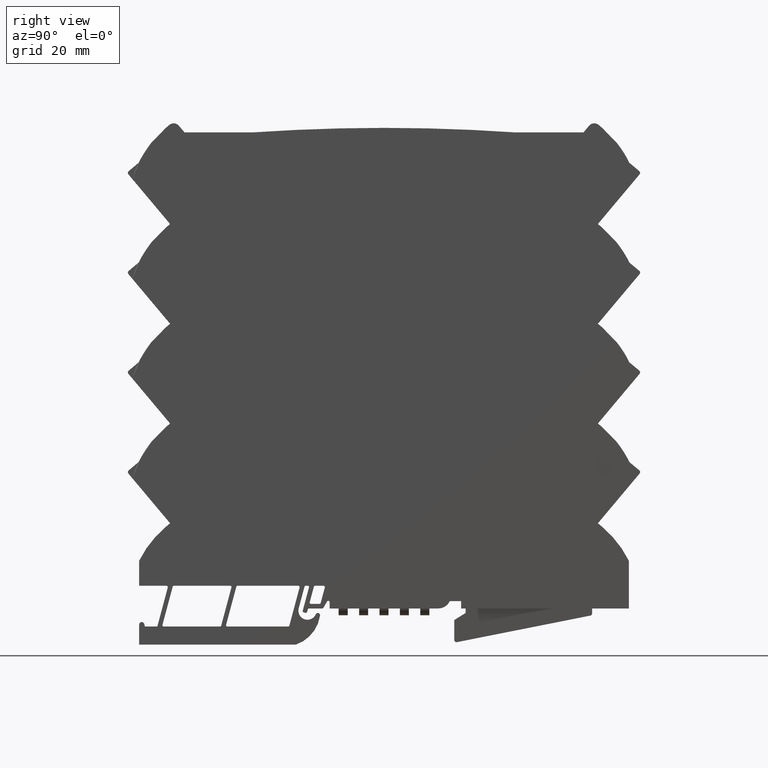
[diagram: clean part render]
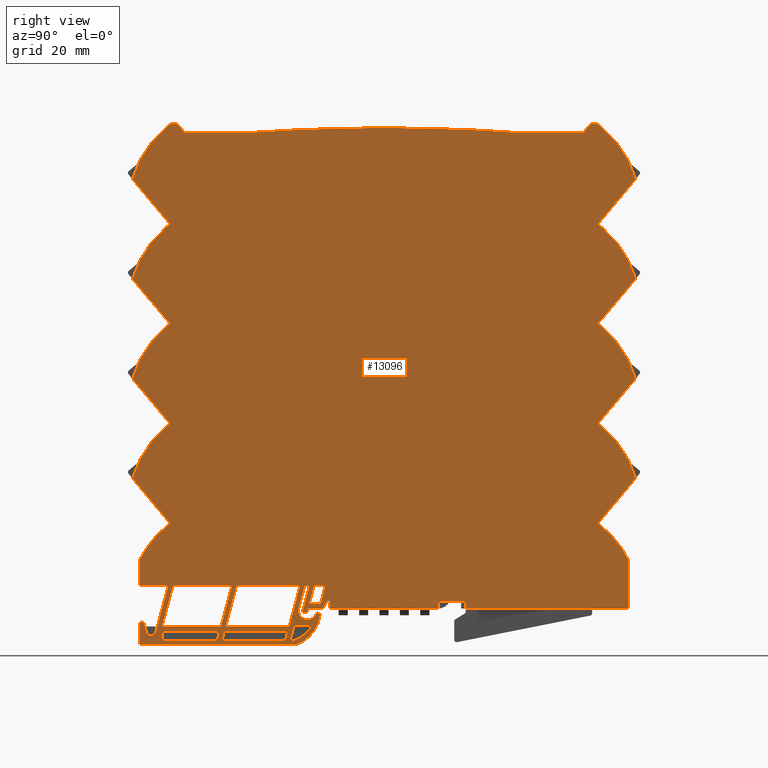
[diagram: same view with one face highlighted and labeled with its STEP entity id]
A machine part, right view. The second image highlights one B-rep face of the part: STEP entity #13096.
In plain terms, the highlighted planar face has unit normal (1, -0, 0).
Its self-contained STEP definition (entity closure, byte-faithful):
#50 = VECTOR ( 'NONE', #2842, 39.37007874015748143 ) ;
#85 = ORIENTED_EDGE ( 'NONE', *, *, #825, .F. ) ;
#95 = CIRCLE ( 'NONE', #3803, 0.01181102362204703576 ) ;
#99 = CIRCLE ( 'NONE', #10727, 0.2755905511811020947 ) ;
#104 = ORIENTED_EDGE ( 'NONE', *, *, #3012, .T. ) ;
#111 = EDGE_CURVE ( 'NONE', #209, #7784, #1759, .T. ) ;
#133 = CARTESIAN_POINT ( 'NONE',  ( 0.1200787401574810731, -1.325035448544701344, -3.951875815493336663 ) ) ;
#151 = CARTESIAN_POINT ( 'NONE',  ( 0.1200787401574802127, 1.864040618317262865, 0.06514860698979765830 ) ) ;
#178 = CARTESIAN_POINT ( 'NONE',  ( 0.1200787401574803098, -0.7445040141933876310, -3.948818897637794922 ) ) ;
#209 = VERTEX_POINT ( 'NONE', #2172 ) ;
#232 = DIRECTION ( 'NONE',  ( -1.000000000000000000, -0.000000000000000000, -0.000000000000000000 ) ) ;
#262 = AXIS2_PLACEMENT_3D ( 'NONE', #8144, #10561, #7134 ) ;
#271 = EDGE_LOOP ( 'NONE', ( #9961, #13783, #1961, #9179, #6152, #1578, #9771, #7167 ) ) ;
#302 = CIRCLE ( 'NONE', #4257, 0.01181102362204703576 ) ;
#305 = VERTEX_POINT ( 'NONE', #11991 ) ;
#307 = VECTOR ( 'NONE', #1870, 39.37007874015748854 ) ;
#309 = DIRECTION ( 'NONE',  ( 0.000000000000000000, 0.000000000000000000, 1.000000000000000000 ) ) ;
#323 = VERTEX_POINT ( 'NONE', #1233 ) ;
#335 = CIRCLE ( 'NONE', #8239, 0.05905511811023610169 ) ;
#349 = EDGE_CURVE ( 'NONE', #4181, #4694, #10175, .T. ) ;
#356 = AXIS2_PLACEMENT_3D ( 'NONE', #4091, #4005, #7634 ) ;
#378 = DIRECTION ( 'NONE',  ( 0.000000000000000000, 2.312964634635783603E-14, -1.000000000000000000 ) ) ;
#380 = ORIENTED_EDGE ( 'NONE', *, *, #12997, .T. ) ;
#381 = CARTESIAN_POINT ( 'NONE',  ( 0.1200787401574803098, -0.7710324005436025585, -4.408488062406223484 ) ) ;
#421 = ORIENTED_EDGE ( 'NONE', *, *, #15043, .T. ) ;
#424 = CARTESIAN_POINT ( 'NONE',  ( 0.1200787401574802127, -1.304396714720946315, -1.529199727539456655 ) ) ;
#425 = EDGE_LOOP ( 'NONE', ( #13773, #7791, #8539, #8339, #10114, #12751, #4465, #13090, #11465, #15221, #3418, #5791, #6990, #8242, #2437, #7347, #11567, #4959, #10085, #14293, #6334, #2944, #11104, #14483, #5468, #14403, #5759, #11467, #14028, #2542, #643, #9377, #13302, #104, #5989, #14322, #7165, #4962, #12677, #608, #5946, #4615, #439, #14628, #13545, #5613, #6124, #4392, #12018, #11793, #13385, #8985, #5807, #6588, #13597, #6071, #2381, #6639, #8616, #4698, #13291, #3221, #10652, #5084, #509, #10059, #421, #8845, #13563, #1004, #7771, #3856, #12887, #3961, #14222, #380, #85, #9289, #10746, #1878 ) ) ;
#432 = CARTESIAN_POINT ( 'NONE',  ( 0.1200787401574802127, -0.6792897666085006003, -3.937007874015747255 ) ) ;
#439 = ORIENTED_EDGE ( 'NONE', *, *, #1309, .F. ) ;
#451 = DIRECTION ( 'NONE',  ( -0.000000000000000000, -1.000000000000000000, -0.000000000000000000 ) ) ;
#471 = VERTEX_POINT ( 'NONE', #14696 ) ;
#482 = EDGE_CURVE ( 'NONE', #12740, #8598, #6701, .T. ) ;
#496 = DIRECTION ( 'NONE',  ( -0.000000000000000000, 0.2588190451025166317, 0.9659258262890693114 ) ) ;
#509 = ORIENTED_EDGE ( 'NONE', *, *, #10232, .T. ) ;
#516 = VERTEX_POINT ( 'NONE', #5624 ) ;
#527 = CIRCLE ( 'NONE', #783, 0.01181102362204703576 ) ;
#555 = CIRCLE ( 'NONE', #5243, 0.05905511811023600455 ) ;
#602 = VERTEX_POINT ( 'NONE', #3309 ) ;
#608 = ORIENTED_EDGE ( 'NONE', *, *, #9080, .F. ) ;
#619 = AXIS2_PLACEMENT_3D ( 'NONE', #1062, #9335, #14987 ) ;
#620 = CARTESIAN_POINT ( 'NONE',  ( 0.1200787401574802127, 1.864040618317261311, -1.667134857577131202 ) ) ;
#622 = CARTESIAN_POINT ( 'NONE',  ( 0.1200787401574802127, -1.912352606603841210, -4.291113860123527246 ) ) ;
#643 = ORIENTED_EDGE ( 'NONE', *, *, #349, .F. ) ;
#652 = CARTESIAN_POINT ( 'NONE',  ( 0.1200787401574802127, -1.304396714720946315, -2.395341459822921237 ) ) ;
#666 = CARTESIAN_POINT ( 'NONE',  ( 0.1200787401574803098, -1.889013949658749025, -3.948818897637794922 ) ) ;
#683 = DIRECTION ( 'NONE',  ( 0.000000000000000000, -1.156482317317891801E-14, -1.000000000000000000 ) ) ;
#692 = DIRECTION ( 'NONE',  ( 0.000000000000000000, 0.000000000000000000, -1.000000000000000000 ) ) ;
#693 = EDGE_CURVE ( 'NONE', #4213, #6567, #10655, .T. ) ;
#708 = EDGE_CURVE ( 'NONE', #6690, #6351, #9727, .T. ) ;
#744 = CARTESIAN_POINT ( 'NONE',  ( 0.1200787401574803098, -1.915934008645272746, -4.342294962485731880 ) ) ;
#749 = LINE ( 'NONE', #14903, #3050 ) ;
#758 = DIRECTION ( 'NONE',  ( 0.000000000000000000, -0.7660444431190032155, 0.6427876096865093869 ) ) ;
#778 = DIRECTION ( 'NONE',  ( 0.000000000000000000, 0.000000000000000000, 1.000000000000000000 ) ) ;
#783 = AXIS2_PLACEMENT_3D ( 'NONE', #5953, #14478, #3877 ) ;
#794 = CARTESIAN_POINT ( 'NONE',  ( 0.1200787401574802127, -1.826080720107427613, -1.712373702643213091 ) ) ;
#797 = CIRCLE ( 'NONE', #10680, 0.01181102362204703576 ) ;
#801 = CARTESIAN_POINT ( 'NONE',  ( 0.1200787401574802127, 1.894199848361309391, -2.558583188667146846 ) ) ;
#813 = EDGE_CURVE ( 'NONE', #11493, #8013, #1782, .T. ) ;
#817 = AXIS2_PLACEMENT_3D ( 'NONE', #9777, #9918, #10087 ) ;
#822 = CIRCLE ( 'NONE', #5735, 0.01181102362204703576 ) ;
#824 = CIRCLE ( 'NONE', #2795, 0.9175707881612595873 ) ;
#825 = EDGE_CURVE ( 'NONE', #6304, #11992, #2978, .T. ) ;
#844 = LINE ( 'NONE', #8158, #2540 ) ;
#858 = CARTESIAN_POINT ( 'NONE',  ( 0.1200787401574803098, -0.5137842140316860595, -3.951875815493334443 ) ) ;
#874 = DIRECTION ( 'NONE',  ( 0.000000000000000000, 0.000000000000000000, -1.000000000000000000 ) ) ;
#878 = VERTEX_POINT ( 'NONE', #11336 ) ;
#882 = LINE ( 'NONE', #5359, #6010 ) ;
#904 = DIRECTION ( 'NONE',  ( -0.000000000000000000, -0.000000000000000000, 1.000000000000000000 ) ) ;
#943 = VERTEX_POINT ( 'NONE', #3140 ) ;
#966 = CARTESIAN_POINT ( 'NONE',  ( 0.1200787401574803098, -1.441875615113126896, -4.330483938863684656 ) ) ;
#1003 = CARTESIAN_POINT ( 'NONE',  ( 0.1200787401574802127, -1.826080720107427613, -3.444657167210142035 ) ) ;
#1004 = ORIENTED_EDGE ( 'NONE', *, *, #15128, .T. ) ;
#1008 = CARTESIAN_POINT ( 'NONE',  ( 0.1200787401574803098, -1.864040618317262865, 0.06514860698979832443 ) ) ;
#1012 = CARTESIAN_POINT ( 'NONE',  ( 0.1200787401574803376, -0.6450477446137117266, -4.079620247498788821 ) ) ;
#1030 = VERTEX_POINT ( 'NONE', #14104 ) ;
#1031 = ORIENTED_EDGE ( 'NONE', *, *, #13785, .T. ) ;
#1039 = LINE ( 'NONE', #4598, #14850 ) ;
#1048 = CIRCLE ( 'NONE', #9693, 0.05905511811023610169 ) ;
#1060 = DIRECTION ( 'NONE',  ( 0.000000000000000000, 0.000000000000000000, -1.000000000000000000 ) ) ;
#1062 = CARTESIAN_POINT ( 'NONE',  ( 0.1200787401574803098, -0.6629862047122783153, -3.948818897637794922 ) ) ;
#1087 = CARTESIAN_POINT ( 'NONE',  ( 0.1200787401574802404, -1.894199848361303840, -3.424724920950604989 ) ) ;
#1111 = AXIS2_PLACEMENT_3D ( 'NONE', #744, #3066, #12498 ) ;
#1117 = CARTESIAN_POINT ( 'NONE',  ( 0.1200787401574803098, -1.391430220654363836, -4.397413072721953142 ) ) ;
#1151 = VERTEX_POINT ( 'NONE', #13637 ) ;
#1185 = CIRCLE ( 'NONE', #7107, 0.9175707881612592542 ) ;
#1186 = VERTEX_POINT ( 'NONE', #3964 ) ;
#1187 = DIRECTION ( 'NONE',  ( -1.000000000000000000, -0.000000000000000000, -0.000000000000000000 ) ) ;
#1202 = VERTEX_POINT ( 'NONE', #14800 ) ;
#1233 = CARTESIAN_POINT ( 'NONE',  ( 0.1200787401574804764, 1.894199848361318050, 0.03984200818324013654 ) ) ;
#1301 = CIRCLE ( 'NONE', #9955, 0.01181102362204703576 ) ;
#1309 = EDGE_CURVE ( 'NONE', #12372, #8827, #1048, .T. ) ;
#1311 = CARTESIAN_POINT ( 'NONE',  ( 0.1200787401574804764, 1.304396714720946315, -2.395341459822921237 ) ) ;
#1333 = ORIENTED_EDGE ( 'NONE', *, *, #11572, .T. ) ;
#1335 = VERTEX_POINT ( 'NONE', #15021 ) ;
#1348 = EDGE_CURVE ( 'NONE', #9343, #602, #3122, .T. ) ;
#1385 = DIRECTION ( 'NONE',  ( -0.000000000000000000, -1.000000000000000000, -0.000000000000000000 ) ) ;
#1411 = VERTEX_POINT ( 'NONE', #9682 ) ;
#1425 = AXIS2_PLACEMENT_3D ( 'NONE', #666, #8920, #4366 ) ;
#1498 = DIRECTION ( 'NONE',  ( 0.000000000000000000, -0.7660444431189915582, -0.6427876096865231537 ) ) ;
#1512 = CIRCLE ( 'NONE', #10408, 0.01968503937007875723 ) ;
#1520 = DIRECTION ( 'NONE',  ( -1.000000000000000000, -0.000000000000000000, -0.000000000000000000 ) ) ;
#1527 = CARTESIAN_POINT ( 'NONE',  ( 0.1200787401574802127, -1.826080720107427613, 0.01990976192371610512 ) ) ;
#1531 = EDGE_CURVE ( 'NONE', #8598, #1202, #11138, .T. ) ;
#1538 = EDGE_CURVE ( 'NONE', #15285, #1958, #6510, .T. ) ;
#1540 = VECTOR ( 'NONE', #7444, 39.37007874015748143 ) ;
#1566 = VERTEX_POINT ( 'NONE', #12299 ) ;
#1578 = ORIENTED_EDGE ( 'NONE', *, *, #11364, .T. ) ;
#1582 = CIRCLE ( 'NONE', #10001, 0.01181102362204703576 ) ;
#1595 = DIRECTION ( 'NONE',  ( 0.000000000000000000, 0.2588190451025196293, 0.9659258262890685343 ) ) ;
#1596 = CIRCLE ( 'NONE', #6286, 0.01181102362204703576 ) ;
#1618 = DIRECTION ( 'NONE',  ( 0.000000000000000000, -4.625929269271494788E-15, -1.000000000000000000 ) ) ;
#1651 = CARTESIAN_POINT ( 'NONE',  ( 0.1200787401574803653, -2.063425397836925246, -4.338285469309460574 ) ) ;
#1661 = VERTEX_POINT ( 'NONE', #13615 ) ;
#1669 = FACE_BOUND ( 'NONE', #3540, .T. ) ;
#1673 = ORIENTED_EDGE ( 'NONE', *, *, #4857, .T. ) ;
#1702 = CARTESIAN_POINT ( 'NONE',  ( 0.1200787401574803098, -2.185039370078740717, -0.4053669693135888985 ) ) ;
#1715 = DIRECTION ( 'NONE',  ( 0.000000000000000000, -0.7660444431189916692, 0.6427876096865230426 ) ) ;
#1716 = DIRECTION ( 'NONE',  ( -0.000000000000000000, -0.000000000000000000, 1.000000000000000000 ) ) ;
#1730 = DIRECTION ( 'NONE',  ( 0.000000000000000000, 8.931783887122237633E-16, -1.000000000000000000 ) ) ;
#1747 = LINE ( 'NONE', #7705, #1794 ) ;
#1748 = CARTESIAN_POINT ( 'NONE',  ( 0.1200787401574804070, -0.5551704464848339349, -4.195769502452561639 ) ) ;
#1751 = DIRECTION ( 'NONE',  ( -1.000000000000000000, 0.000000000000000000, 0.000000000000000000 ) ) ;
#1759 = CIRCLE ( 'NONE', #10411, 0.9175707881612595873 ) ;
#1775 = DIRECTION ( 'NONE',  ( 0.000000000000000000, -0.7660444431189888936, 0.6427876096865264843 ) ) ;
#1782 = CIRCLE ( 'NONE', #9438, 0.01181102362204703576 ) ;
#1794 = VECTOR ( 'NONE', #5319, 39.37007874015748854 ) ;
#1799 = DIRECTION ( 'NONE',  ( -1.000000000000000000, -0.000000000000000000, -0.000000000000000000 ) ) ;
#1829 = LINE ( 'NONE', #11494, #7171 ) ;
#1837 = CARTESIAN_POINT ( 'NONE',  ( 0.1200787401574803098, -0.7994902135516051001, -4.409224096344000365 ) ) ;
#1861 = CARTESIAN_POINT ( 'NONE',  ( 0.1200787401574806151, 2.185039370078740717, -1.271508701597053648 ) ) ;
#1870 = DIRECTION ( 'NONE',  ( 0.000000000000000000, 0.6427876096865353661, -0.7660444431189813441 ) ) ;
#1878 = ORIENTED_EDGE ( 'NONE', *, *, #13661, .T. ) ;
#1885 = DIRECTION ( 'NONE',  ( -0.000000000000000000, 0.2588190451025176864, 0.9659258262890690894 ) ) ;
#1889 = EDGE_CURVE ( 'NONE', #13468, #6690, #11439, .T. ) ;
#1915 = VERTEX_POINT ( 'NONE', #14355 ) ;
#1929 = EDGE_CURVE ( 'NONE', #7516, #10993, #797, .T. ) ;
#1958 = VERTEX_POINT ( 'NONE', #1837 ) ;
#1961 = ORIENTED_EDGE ( 'NONE', *, *, #13531, .T. ) ;
#1974 = DIRECTION ( 'NONE',  ( -0.000000000000000000, -0.2588190451025176864, -0.9659258262890690894 ) ) ;
#1975 = CARTESIAN_POINT ( 'NONE',  ( 0.1200787401574802127, 1.864040618317261533, -2.533276589860596673 ) ) ;
#1988 = EDGE_CURVE ( 'NONE', #13031, #8441, #10915, .T. ) ;
#2004 = EDGE_CURVE ( 'NONE', #14631, #12550, #749, .T. ) ;
#2032 = CARTESIAN_POINT ( 'NONE',  ( 0.1200787401574808233, -0.5292667587785063743, -4.133858267716535195 ) ) ;
#2044 = AXIS2_PLACEMENT_3D ( 'NONE', #13992, #11447, #10301 ) ;
#2052 = ORIENTED_EDGE ( 'NONE', *, *, #12565, .T. ) ;
#2062 = EDGE_CURVE ( 'NONE', #14715, #7516, #6392, .T. ) ;
#2075 = DIRECTION ( 'NONE',  ( -0.000000000000000000, -0.6427876096865348110, -0.7660444431189817882 ) ) ;
#2082 = EDGE_CURVE ( 'NONE', #1958, #1151, #10186, .T. ) ;
#2110 = VECTOR ( 'NONE', #15300, 39.37007874015748143 ) ;
#2125 = EDGE_CURVE ( 'NONE', #11815, #11319, #5673, .T. ) ;
#2145 = EDGE_CURVE ( 'NONE', #11502, #3716, #10496, .T. ) ;
#2172 = CARTESIAN_POINT ( 'NONE',  ( 0.1200787401574802127, -2.185039370078740717, -0.4053669693135888985 ) ) ;
#2228 = CARTESIAN_POINT ( 'NONE',  ( 0.1200787401574804764, 2.185039370078740717, -0.4053669693135888985 ) ) ;
#2258 = EDGE_CURVE ( 'NONE', #516, #4792, #7223, .T. ) ;
#2283 = VERTEX_POINT ( 'NONE', #4909 ) ;
#2310 = VECTOR ( 'NONE', #8083, 39.37007874015748143 ) ;
#2357 = DIRECTION ( 'NONE',  ( 0.000000000000000000, 0.000000000000000000, -1.000000000000000000 ) ) ;
#2360 = EDGE_CURVE ( 'NONE', #2972, #10564, #2965, .T. ) ;
#2371 = VERTEX_POINT ( 'NONE', #11321 ) ;
#2381 = ORIENTED_EDGE ( 'NONE', *, *, #2855, .T. ) ;
#2398 = EDGE_CURVE ( 'NONE', #5861, #5399, #302, .T. ) ;
#2399 = EDGE_CURVE ( 'NONE', #14660, #4792, #10199, .T. ) ;
#2437 = ORIENTED_EDGE ( 'NONE', *, *, #15023, .T. ) ;
#2438 = EDGE_CURVE ( 'NONE', #8013, #14085, #13325, .T. ) ;
#2500 = VERTEX_POINT ( 'NONE', #8067 ) ;
#2501 = CARTESIAN_POINT ( 'NONE',  ( 0.1200787401574802127, -1.780841875041347278, 0.05786966013355122895 ) ) ;
#2526 = VECTOR ( 'NONE', #3761, 39.37007874015748143 ) ;
#2540 = VECTOR ( 'NONE', #10506, 39.37007874015748143 ) ;
#2542 = ORIENTED_EDGE ( 'NONE', *, *, #8652, .T. ) ;
#2572 = CARTESIAN_POINT ( 'NONE',  ( 0.1200787401574803098, -1.402838793405809525, -4.394356154866411401 ) ) ;
#2583 = LINE ( 'NONE', #3584, #3998 ) ;
#2592 = VERTEX_POINT ( 'NONE', #3169 ) ;
#2600 = VERTEX_POINT ( 'NONE', #5174 ) ;
#2624 = CARTESIAN_POINT ( 'NONE',  ( 0.1200787401574803098, -0.6091805298788371958, -3.945761979782253626 ) ) ;
#2627 = CARTESIAN_POINT ( 'NONE',  ( 0.1200787401574804070, -2.022284464715923047, -4.327261789503825007 ) ) ;
#2708 = CARTESIAN_POINT ( 'NONE',  ( 0.1200787401574803098, -2.125984251968504157, -3.937007874015747255 ) ) ;
#2745 = LINE ( 'NONE', #14436, #5048 ) ;
#2755 = EDGE_CURVE ( 'NONE', #4245, #14631, #7206, .T. ) ;
#2771 = LINE ( 'NONE', #13216, #10471 ) ;
#2782 = VECTOR ( 'NONE', #12590, 39.37007874015748854 ) ;
#2783 = AXIS2_PLACEMENT_3D ( 'NONE', #424, #14804, #1730 ) ;
#2795 = AXIS2_PLACEMENT_3D ( 'NONE', #6023, #7394, #9743 ) ;
#2840 = CARTESIAN_POINT ( 'NONE',  ( 0.1200787401574802127, -0.8239940015425135655, -4.291113860123527246 ) ) ;
#2842 = DIRECTION ( 'NONE',  ( -0.000000000000000000, 0.000000000000000000, 1.000000000000000000 ) ) ;
#2851 = CIRCLE ( 'NONE', #9535, 0.04259222810001753179 ) ;
#2852 = EDGE_CURVE ( 'NONE', #323, #8827, #12752, .T. ) ;
#2855 = EDGE_CURVE ( 'NONE', #14660, #10479, #15149, .T. ) ;
#2868 = LINE ( 'NONE', #11569, #9415 ) ;
#2881 = VERTEX_POINT ( 'NONE', #381 ) ;
#2883 = DIRECTION ( 'NONE',  ( 0.000000000000000000, 1.000000000000000000, 0.000000000000000000 ) ) ;
#2887 = CARTESIAN_POINT ( 'NONE',  ( 0.1200787401574808927, -1.413588353074681114, -4.282359754357021764 ) ) ;
#2910 = EDGE_CURVE ( 'NONE', #323, #11441, #824, .T. ) ;
#2914 = VERTEX_POINT ( 'NONE', #4868 ) ;
#2916 = VERTEX_POINT ( 'NONE', #13283 ) ;
#2936 = DIRECTION ( 'NONE',  ( -1.000000000000000000, 0.000000000000000000, 0.000000000000000000 ) ) ;
#2942 = CARTESIAN_POINT ( 'NONE',  ( 0.1200787401574803098, 0.4724409448818900348, -4.070866141732285115 ) ) ;
#2944 = ORIENTED_EDGE ( 'NONE', *, *, #3970, .T. ) ;
#2965 = LINE ( 'NONE', #5204, #7493 ) ;
#2972 = VERTEX_POINT ( 'NONE', #14368 ) ;
#2978 = LINE ( 'NONE', #10038, #50 ) ;
#2987 = VECTOR ( 'NONE', #8833, 39.37007874015748143 ) ;
#3012 = EDGE_CURVE ( 'NONE', #2283, #10166, #10200, .T. ) ;
#3047 = VECTOR ( 'NONE', #9297, 39.37007874015748143 ) ;
#3050 = VECTOR ( 'NONE', #14585, 39.37007874015748143 ) ;
#3059 = LINE ( 'NONE', #12406, #10426 ) ;
#3066 = DIRECTION ( 'NONE',  ( -1.000000000000000000, 0.000000000000000000, 0.000000000000000000 ) ) ;
#3098 = CARTESIAN_POINT ( 'NONE',  ( 0.1200787401574802404, -1.857216201253084398, -2.528334873064115751 ) ) ;
#3122 = LINE ( 'NONE', #5516, #4993 ) ;
#3129 = EDGE_CURVE ( 'NONE', #1151, #5869, #6696, .T. ) ;
#3133 = CARTESIAN_POINT ( 'NONE',  ( 0.1200787401574805457, -0.4944806150053282501, -4.073606899301994488 ) ) ;
#3140 = CARTESIAN_POINT ( 'NONE',  ( 0.1200787401574803098, -0.6465814479542371096, -4.283464566929134243 ) ) ;
#3145 = EDGE_CURVE ( 'NONE', #3592, #5861, #14042, .T. ) ;
#3162 = EDGE_CURVE ( 'NONE', #1335, #4213, #844, .T. ) ;
#3169 = CARTESIAN_POINT ( 'NONE',  ( 0.1200787401574802127, 1.857216201253085286, -3.394476605347580556 ) ) ;
#3171 = CARTESIAN_POINT ( 'NONE',  ( 0.1200787401574807123, -0.6821121330729242871, -4.172312137374260210 ) ) ;
#3182 = DIRECTION ( 'NONE',  ( 0.000000000000000000, 0.000000000000000000, -1.000000000000000000 ) ) ;
#3218 = CARTESIAN_POINT ( 'NONE',  ( 0.1200787401574802127, 1.857216201253085064, -0.7960514084971871407 ) ) ;
#3221 = ORIENTED_EDGE ( 'NONE', *, *, #3430, .F. ) ;
#3249 = VERTEX_POINT ( 'NONE', #2887 ) ;
#3253 = AXIS2_PLACEMENT_3D ( 'NONE', #4961, #1187, #8368 ) ;
#3289 = DIRECTION ( 'NONE',  ( -1.000000000000000000, 0.000000000000000000, 0.000000000000000000 ) ) ;
#3294 = EDGE_CURVE ( 'NONE', #15060, #1661, #8217, .T. ) ;
#3307 = DIRECTION ( 'NONE',  ( -0.000000000000000000, -0.6427876096865348110, -0.7660444431189817882 ) ) ;
#3309 = CARTESIAN_POINT ( 'NONE',  ( 0.1200787401574802404, -1.894199848361294736, -1.692441456383670051 ) ) ;
#3324 = CARTESIAN_POINT ( 'NONE',  ( 0.1200787401574803098, -1.915934008645272746, -4.330483938863684656 ) ) ;
#3331 = CIRCLE ( 'NONE', #5557, 16.57480314960641010 ) ;
#3345 = ORIENTED_EDGE ( 'NONE', *, *, #10672, .T. ) ;
#3418 = ORIENTED_EDGE ( 'NONE', *, *, #14834, .F. ) ;
#3430 = EDGE_CURVE ( 'NONE', #9357, #11275, #10227, .T. ) ;
#3435 = EDGE_CURVE ( 'NONE', #3249, #4552, #882, .T. ) ;
#3469 = VECTOR ( 'NONE', #6883, 39.37007874015748143 ) ;
#3517 = VECTOR ( 'NONE', #7093, 39.37007874015748143 ) ;
#3529 = LINE ( 'NONE', #8252, #12926 ) ;
#3540 = EDGE_LOOP ( 'NONE', ( #11106, #11989, #3940, #6054, #4131, #7016, #7376, #3543 ) ) ;
#3543 = ORIENTED_EDGE ( 'NONE', *, *, #13512, .T. ) ;
#3558 = AXIS2_PLACEMENT_3D ( 'NONE', #5037, #10304, #778 ) ;
#3575 = DIRECTION ( 'NONE',  ( 0.000000000000000000, 0.000000000000000000, -1.000000000000000000 ) ) ;
#3577 = EDGE_CURVE ( 'NONE', #5453, #3764, #13903, .T. ) ;
#3584 = CARTESIAN_POINT ( 'NONE',  ( 0.1200787401574804764, -2.125984251968504157, -4.448594175084157776 ) ) ;
#3585 = ORIENTED_EDGE ( 'NONE', *, *, #13424, .F. ) ;
#3592 = VERTEX_POINT ( 'NONE', #12922 ) ;
#3616 = EDGE_CURVE ( 'NONE', #11093, #9253, #15171, .T. ) ;
#3641 = VERTEX_POINT ( 'NONE', #11067 ) ;
#3675 = EDGE_CURVE ( 'NONE', #14150, #15112, #13299, .T. ) ;
#3686 = DIRECTION ( 'NONE',  ( -1.000000000000000000, 0.000000000000000000, 0.000000000000000000 ) ) ;
#3700 = DIRECTION ( 'NONE',  ( 0.000000000000000000, -3.572713554848895842E-15, -1.000000000000000000 ) ) ;
#3716 = VERTEX_POINT ( 'NONE', #14313 ) ;
#3745 = VERTEX_POINT ( 'NONE', #13465 ) ;
#3751 = DIRECTION ( 'NONE',  ( -1.000000000000000000, -0.000000000000000000, -0.000000000000000000 ) ) ;
#3761 = DIRECTION ( 'NONE',  ( 0.000000000000000000, 1.000000000000000000, 0.000000000000000000 ) ) ;
#3764 = VERTEX_POINT ( 'NONE', #12069 ) ;
#3767 = DIRECTION ( 'NONE',  ( 0.000000000000000000, 0.000000000000000000, 1.000000000000000000 ) ) ;
#3778 = VECTOR ( 'NONE', #2075, 39.37007874015748143 ) ;
#3789 = VECTOR ( 'NONE', #11073, 39.37007874015748143 ) ;
#3792 = EDGE_CURVE ( 'NONE', #5869, #9644, #13681, .T. ) ;
#3793 = AXIS2_PLACEMENT_3D ( 'NONE', #7526, #13107, #12245 ) ;
#3803 = AXIS2_PLACEMENT_3D ( 'NONE', #14453, #3855, #683 ) ;
#3804 = CIRCLE ( 'NONE', #4788, 16.57480314960641010 ) ;
#3822 = AXIS2_PLACEMENT_3D ( 'NONE', #8378, #14193, #10791 ) ;
#3829 = VERTEX_POINT ( 'NONE', #15002 ) ;
#3830 = EDGE_CURVE ( 'NONE', #516, #10744, #7261, .T. ) ;
#3832 = CARTESIAN_POINT ( 'NONE',  ( 0.1200787401574803098, -1.864040618317262421, -0.8009931252936670631 ) ) ;
#3838 = DIRECTION ( 'NONE',  ( 0.000000000000000000, 0.000000000000000000, 1.000000000000000000 ) ) ;
#3843 = VECTOR ( 'NONE', #14898, 39.37007874015748854 ) ;
#3849 = DIRECTION ( 'NONE',  ( -1.000000000000000000, -0.000000000000000000, -0.000000000000000000 ) ) ;
#3855 = DIRECTION ( 'NONE',  ( -1.000000000000000000, -0.000000000000000000, -0.000000000000000000 ) ) ;
#3856 = ORIENTED_EDGE ( 'NONE', *, *, #2360, .F. ) ;
#3861 = CARTESIAN_POINT ( 'NONE',  ( 0.1200787401574802127, 1.857216201253085286, -2.528334873064115751 ) ) ;
#3877 = DIRECTION ( 'NONE',  ( 0.000000000000000000, 2.312964634635783603E-14, -1.000000000000000000 ) ) ;
#3889 = CARTESIAN_POINT ( 'NONE',  ( 0.1200787401574802127, 1.780841875041346389, 0.05786966013355123589 ) ) ;
#3912 = CARTESIAN_POINT ( 'NONE',  ( 0.1200787401574802127, 1.826080720107427613, -0.8462319703597485088 ) ) ;
#3926 = CARTESIAN_POINT ( 'NONE',  ( 0.1200787401574803098, 0.7086614173228352742, -4.133858267716535195 ) ) ;
#3940 = ORIENTED_EDGE ( 'NONE', *, *, #5145, .T. ) ;
#3961 = ORIENTED_EDGE ( 'NONE', *, *, #5472, .T. ) ;
#3964 = CARTESIAN_POINT ( 'NONE',  ( 0.1200787401574803098, 1.864040618317261755, -3.399418322144061033 ) ) ;
#3970 = EDGE_CURVE ( 'NONE', #8655, #11502, #4635, .T. ) ;
#3974 = AXIS2_PLACEMENT_3D ( 'NONE', #11733, #10649, #1060 ) ;
#3984 = CIRCLE ( 'NONE', #4469, 0.01181102362204703576 ) ;
#3998 = VECTOR ( 'NONE', #8301, 39.37007874015748143 ) ;
#4005 = DIRECTION ( 'NONE',  ( -1.000000000000000000, -0.000000000000000000, -0.000000000000000000 ) ) ;
#4060 = ORIENTED_EDGE ( 'NONE', *, *, #2082, .T. ) ;
#4072 = DIRECTION ( 'NONE',  ( 0.000000000000000000, 0.000000000000000000, 1.000000000000000000 ) ) ;
#4091 = CARTESIAN_POINT ( 'NONE',  ( 0.1200787401574802682, -0.4842519685039373134, -4.079512411113018544 ) ) ;
#4106 = LINE ( 'NONE', #12363, #9207 ) ;
#4113 = DIRECTION ( 'NONE',  ( -0.000000000000000000, -0.9659258262890707547, 0.2588190451025114136 ) ) ;
#4119 = CARTESIAN_POINT ( 'NONE',  ( 0.1200787401574803098, 1.894199848361310501, -3.424724920950611651 ) ) ;
#4131 = ORIENTED_EDGE ( 'NONE', *, *, #12030, .T. ) ;
#4157 = CARTESIAN_POINT ( 'NONE',  ( 0.1200787401574803098, -0.8532958883850466636, -4.400469990577493995 ) ) ;
#4171 = EDGE_CURVE ( 'NONE', #11815, #13056, #1582, .T. ) ;
#4181 = VERTEX_POINT ( 'NONE', #3861 ) ;
#4198 = CARTESIAN_POINT ( 'NONE',  ( 0.1200787401574803098, -1.732283464566929165, 0.000000000000000000 ) ) ;
#4213 = VERTEX_POINT ( 'NONE', #14689 ) ;
#4218 = DIRECTION ( 'NONE',  ( -1.000000000000000000, 0.000000000000000000, 0.000000000000000000 ) ) ;
#4232 = AXIS2_PLACEMENT_3D ( 'NONE', #6485, #11207, #12588 ) ;
#4236 = EDGE_CURVE ( 'NONE', #7788, #1335, #8502, .T. ) ;
#4245 = VERTEX_POINT ( 'NONE', #9039 ) ;
#4252 = CARTESIAN_POINT ( 'NONE',  ( 0.1200787401574802127, -1.826080720107427613, -0.8462319703597485088 ) ) ;
#4256 = VECTOR ( 'NONE', #9528, 39.37007874015748854 ) ;
#4257 = AXIS2_PLACEMENT_3D ( 'NONE', #10023, #13564, #11092 ) ;
#4271 = CARTESIAN_POINT ( 'NONE',  ( 0.1200787401574803098, -0.6336391718622661484, -4.094488188976378673 ) ) ;
#4284 = AXIS2_PLACEMENT_3D ( 'NONE', #10113, #4218, #9960 ) ;
#4311 = VERTEX_POINT ( 'NONE', #7565 ) ;
#4343 = LINE ( 'NONE', #1008, #12877 ) ;
#4366 = DIRECTION ( 'NONE',  ( 0.000000000000000000, -2.312964634635783603E-14, -1.000000000000000000 ) ) ;
#4392 = ORIENTED_EDGE ( 'NONE', *, *, #8311, .F. ) ;
#4400 = VERTEX_POINT ( 'NONE', #3218 ) ;
#4402 = EDGE_CURVE ( 'NONE', #14082, #1411, #7012, .T. ) ;
#4433 = VERTEX_POINT ( 'NONE', #12737 ) ;
#4448 = CARTESIAN_POINT ( 'NONE',  ( 0.1200787401574803098, 0.000000000000000000, -3.937007874015747255 ) ) ;
#4456 = CIRCLE ( 'NONE', #5196, 0.07874015748031502893 ) ;
#4465 = ORIENTED_EDGE ( 'NONE', *, *, #5876, .F. ) ;
#4469 = AXIS2_PLACEMENT_3D ( 'NONE', #7213, #9784, #7527 ) ;
#4476 = DIRECTION ( 'NONE',  ( 0.000000000000000000, 6.938893903907222067E-14, -1.000000000000000000 ) ) ;
#4480 = VECTOR ( 'NONE', #12935, 39.37007874015748143 ) ;
#4494 = DIRECTION ( 'NONE',  ( 1.000000000000000000, 0.000000000000000000, 0.000000000000000000 ) ) ;
#4496 = CIRCLE ( 'NONE', #5242, 0.01181102362204703576 ) ;
#4499 = DIRECTION ( 'NONE',  ( 0.000000000000000000, 0.000000000000000000, -1.000000000000000000 ) ) ;
#4515 = ORIENTED_EDGE ( 'NONE', *, *, #708, .T. ) ;
#4538 = DIRECTION ( 'NONE',  ( 0.000000000000000000, -0.2588190451025189631, -0.9659258262890687563 ) ) ;
#4543 = CARTESIAN_POINT ( 'NONE',  ( 0.1200787401574803098, -0.7445040141933876310, -3.937007874015747255 ) ) ;
#4552 = VERTEX_POINT ( 'NONE', #133 ) ;
#4560 = CARTESIAN_POINT ( 'NONE',  ( 0.1200787401574803098, -2.185039370078740717, -1.271508701597054314 ) ) ;
#4562 = DIRECTION ( 'NONE',  ( -0.000000000000000000, -1.000000000000000000, -0.000000000000000000 ) ) ;
#4568 = CARTESIAN_POINT ( 'NONE',  ( 0.1200787401574803098, 0.000000000000000000, -4.094488188976379561 ) ) ;
#4598 = CARTESIAN_POINT ( 'NONE',  ( 0.1200787401574802127, -1.415934008645272746, -4.291113860123527246 ) ) ;
#4615 = ORIENTED_EDGE ( 'NONE', *, *, #2852, .T. ) ;
#4619 = EDGE_CURVE ( 'NONE', #12402, #1030, #3331, .T. ) ;
#4620 = ORIENTED_EDGE ( 'NONE', *, *, #1988, .T. ) ;
#4635 = LINE ( 'NONE', #9196, #10732 ) ;
#4636 = DIRECTION ( 'NONE',  ( -1.000000000000000000, -0.000000000000000000, -0.000000000000000000 ) ) ;
#4642 = EDGE_CURVE ( 'NONE', #1566, #12481, #9516, .T. ) ;
#4663 = CARTESIAN_POINT ( 'NONE',  ( 0.1200787401574802127, 2.185039370078740717, -3.003792166163982813 ) ) ;
#4694 = VERTEX_POINT ( 'NONE', #1975 ) ;
#4698 = ORIENTED_EDGE ( 'NONE', *, *, #8172, .F. ) ;
#4718 = EDGE_CURVE ( 'NONE', #6567, #9736, #5752, .T. ) ;
#4784 = CARTESIAN_POINT ( 'NONE',  ( 0.1200787401574802682, -0.6790552152173827682, -4.160903564622813633 ) ) ;
#4787 = AXIS2_PLACEMENT_3D ( 'NONE', #13349, #8722, #378 ) ;
#4788 = AXIS2_PLACEMENT_3D ( 'NONE', #5177, #11919, #6275 ) ;
#4792 = VERTEX_POINT ( 'NONE', #6768 ) ;
#4857 = EDGE_CURVE ( 'NONE', #3249, #14059, #7026, .T. ) ;
#4868 = CARTESIAN_POINT ( 'NONE',  ( 0.1200787401574804764, 2.185039370078739829, -2.137650433880518008 ) ) ;
#4876 = DIRECTION ( 'NONE',  ( -1.000000000000000000, -0.000000000000000000, -0.000000000000000000 ) ) ;
#4909 = CARTESIAN_POINT ( 'NONE',  ( 0.1200787401574804764, 1.894199848361301619, -1.692441456383675380 ) ) ;
#4916 = FACE_OUTER_BOUND ( 'NONE', #425, .T. ) ;
#4932 = CARTESIAN_POINT ( 'NONE',  ( 0.1200787401574803098, 0.000000000000000000, -4.409224096344001254 ) ) ;
#4946 = ORIENTED_EDGE ( 'NONE', *, *, #3435, .F. ) ;
#4959 = ORIENTED_EDGE ( 'NONE', *, *, #3162, .T. ) ;
#4961 = CARTESIAN_POINT ( 'NONE',  ( 0.1200787401574804070, -0.8667982748992533182, -4.150071636439912837 ) ) ;
#4962 = ORIENTED_EDGE ( 'NONE', *, *, #6691, .T. ) ;
#4993 = VECTOR ( 'NONE', #10257, 39.37007874015748143 ) ;
#5015 = DIRECTION ( 'NONE',  ( 0.000000000000000000, 0.000000000000000000, -1.000000000000000000 ) ) ;
#5037 = CARTESIAN_POINT ( 'NONE',  ( 0.1200787401574803098, -0.7721225576869987783, -4.295275590551181466 ) ) ;
#5048 = VECTOR ( 'NONE', #1595, 39.37007874015748143 ) ;
#5084 = ORIENTED_EDGE ( 'NONE', *, *, #9210, .F. ) ;
#5120 = VERTEX_POINT ( 'NONE', #801 ) ;
#5145 = EDGE_CURVE ( 'NONE', #10993, #8265, #6663, .T. ) ;
#5174 = CARTESIAN_POINT ( 'NONE',  ( 0.1200787401574802127, -1.864040618317262421, -3.399418322144060589 ) ) ;
#5177 = CARTESIAN_POINT ( 'NONE',  ( 0.1200787401574803098, 0.000000000000000000, -16.53543307086625092 ) ) ;
#5188 = LINE ( 'NONE', #6519, #6981 ) ;
#5194 = DIRECTION ( 'NONE',  ( 0.000000000000000000, 0.000000000000000000, 1.000000000000000000 ) ) ;
#5196 = AXIS2_PLACEMENT_3D ( 'NONE', #14345, #3751, #8476 ) ;
#5204 = CARTESIAN_POINT ( 'NONE',  ( 0.1200787401574804764, -1.873621523995269822, -3.937007874015747699 ) ) ;
#5216 = FACE_BOUND ( 'NONE', #13368, .T. ) ;
#5242 = AXIS2_PLACEMENT_3D ( 'NONE', #8416, #8730, #692 ) ;
#5243 = AXIS2_PLACEMENT_3D ( 'NONE', #794, #6431, #11149 ) ;
#5279 = CARTESIAN_POINT ( 'NONE',  ( 0.1200787401574802404, -1.857216201253084620, -0.7960514084971868076 ) ) ;
#5292 = EDGE_CURVE ( 'NONE', #2500, #10537, #11990, .T. ) ;
#5318 = VERTEX_POINT ( 'NONE', #12215 ) ;
#5319 = DIRECTION ( 'NONE',  ( 0.000000000000000000, -0.7660444431189820103, -0.6427876096865343669 ) ) ;
#5324 = CARTESIAN_POINT ( 'NONE',  ( 0.1200787401574803098, 1.894199848361311389, -1.692441456383683152 ) ) ;
#5336 = CARTESIAN_POINT ( 'NONE',  ( 0.1200787401574815727, -0.7291115885299088717, -3.937007874015747699 ) ) ;
#5359 = CARTESIAN_POINT ( 'NONE',  ( 0.1200787401574815727, -1.321051595632668052, -3.937007874015747699 ) ) ;
#5399 = VERTEX_POINT ( 'NONE', #9980 ) ;
#5424 = CARTESIAN_POINT ( 'NONE',  ( 0.1200787401574804764, 2.185039370078740273, -2.137650433880518008 ) ) ;
#5433 = CARTESIAN_POINT ( 'NONE',  ( 0.1200787401574803098, -1.336444021296146811, -3.937007874015747255 ) ) ;
#5450 = LINE ( 'NONE', #6388, #3843 ) ;
#5453 = VERTEX_POINT ( 'NONE', #622 ) ;
#5468 = ORIENTED_EDGE ( 'NONE', *, *, #15301, .F. ) ;
#5472 = EDGE_CURVE ( 'NONE', #4433, #8064, #2851, .T. ) ;
#5507 = DIRECTION ( 'NONE',  ( -1.000000000000000000, -0.000000000000000000, -0.000000000000000000 ) ) ;
#5516 = CARTESIAN_POINT ( 'NONE',  ( 0.1200787401574803098, -1.864040618317261311, -1.667134857577132312 ) ) ;
#5526 = CIRCLE ( 'NONE', #3793, 0.9175707881612598094 ) ;
#5532 = CARTESIAN_POINT ( 'NONE',  ( 0.1200787401574802127, -1.894199848361318272, 0.03984200818324020593 ) ) ;
#5539 = CIRCLE ( 'NONE', #4787, 0.01181102362204703576 ) ;
#5544 = DIRECTION ( 'NONE',  ( 0.000000000000000000, 1.000000000000000000, 0.000000000000000000 ) ) ;
#5557 = AXIS2_PLACEMENT_3D ( 'NONE', #7783, #8928, #4072 ) ;
#5558 = VERTEX_POINT ( 'NONE', #4543 ) ;
#5580 = VERTEX_POINT ( 'NONE', #8026 ) ;
#5597 = ORIENTED_EDGE ( 'NONE', *, *, #10632, .T. ) ;
#5599 = CARTESIAN_POINT ( 'NONE',  ( 0.1200787401574802127, -1.304396714720946315, -4.127624924389849959 ) ) ;
#5613 = ORIENTED_EDGE ( 'NONE', *, *, #9555, .F. ) ;
#5615 = CARTESIAN_POINT ( 'NONE',  ( 0.1200787401574805457, -0.6619264339007113751, -4.142612373483041566 ) ) ;
#5618 = EDGE_CURVE ( 'NONE', #8010, #2592, #12971, .T. ) ;
#5624 = CARTESIAN_POINT ( 'NONE',  ( 0.1200787401574803098, -1.864040618317261755, -0.8009931252936667301 ) ) ;
#5665 = CARTESIAN_POINT ( 'NONE',  ( 0.1200787401574803098, -1.336444021296146811, -3.948818897637794922 ) ) ;
#5673 = LINE ( 'NONE', #9249, #2310 ) ;
#5692 = VECTOR ( 'NONE', #12239, 39.37007874015748854 ) ;
#5702 = DIRECTION ( 'NONE',  ( 0.000000000000000000, -0.7660444431189727954, 0.6427876096865452471 ) ) ;
#5735 = AXIS2_PLACEMENT_3D ( 'NONE', #4784, #9510, #14223 ) ;
#5752 = LINE ( 'NONE', #6836, #12959 ) ;
#5759 = ORIENTED_EDGE ( 'NONE', *, *, #9539, .F. ) ;
#5770 = DIRECTION ( 'NONE',  ( 0.000000000000000000, 0.2588190451025190741, 0.9659258262890687563 ) ) ;
#5791 = ORIENTED_EDGE ( 'NONE', *, *, #13726, .F. ) ;
#5807 = ORIENTED_EDGE ( 'NONE', *, *, #8568, .T. ) ;
#5809 = LINE ( 'NONE', #10540, #3469 ) ;
#5810 = DIRECTION ( 'NONE',  ( -0.000000000000000000, 1.000000000000000000, -5.940250236135136720E-17 ) ) ;
#5859 = LINE ( 'NONE', #7023, #3517 ) ;
#5861 = VERTEX_POINT ( 'NONE', #7852 ) ;
#5869 = VERTEX_POINT ( 'NONE', #13504 ) ;
#5876 = EDGE_CURVE ( 'NONE', #9124, #1411, #12500, .T. ) ;
#5877 = EDGE_CURVE ( 'NONE', #10894, #11275, #5450, .T. ) ;
#5886 = CARTESIAN_POINT ( 'NONE',  ( 0.1200787401574802404, 1.864040618317261755, -0.8009931252936665080 ) ) ;
#5897 = EDGE_CURVE ( 'NONE', #5580, #8441, #13658, .T. ) ;
#5946 = ORIENTED_EDGE ( 'NONE', *, *, #2910, .F. ) ;
#5953 = CARTESIAN_POINT ( 'NONE',  ( 0.1200787401574803098, -0.6465814479542371096, -4.295275590551181466 ) ) ;
#5967 = DIRECTION ( 'NONE',  ( -1.000000000000000000, -0.000000000000000000, -0.000000000000000000 ) ) ;
#5989 = ORIENTED_EDGE ( 'NONE', *, *, #10691, .F. ) ;
#5997 = VECTOR ( 'NONE', #5702, 39.37007874015748854 ) ;
#5999 = DIRECTION ( 'NONE',  ( 0.000000000000000000, 1.000000000000000000, 0.000000000000000000 ) ) ;
#6002 = AXIS2_PLACEMENT_3D ( 'NONE', #10687, #232, #14310 ) ;
#6010 = VECTOR ( 'NONE', #1885, 39.37007874015748854 ) ;
#6014 = VERTEX_POINT ( 'NONE', #11497 ) ;
#6017 = AXIS2_PLACEMENT_3D ( 'NONE', #1003, #4636, #4476 ) ;
#6023 = CARTESIAN_POINT ( 'NONE',  ( 0.1200787401574804764, 1.304396714720946315, -0.6630579952559920720 ) ) ;
#6054 = ORIENTED_EDGE ( 'NONE', *, *, #9199, .T. ) ;
#6071 = ORIENTED_EDGE ( 'NONE', *, *, #2399, .F. ) ;
#6078 = DIRECTION ( 'NONE',  ( 1.000000000000000000, -0.000000000000000000, 0.000000000000000000 ) ) ;
#6088 = ORIENTED_EDGE ( 'NONE', *, *, #14697, .F. ) ;
#6108 = ORIENTED_EDGE ( 'NONE', *, *, #3577, .T. ) ;
#6113 = CARTESIAN_POINT ( 'NONE',  ( 0.1200787401574802404, -1.894199848361301619, -2.558583188667139741 ) ) ;
#6122 = CARTESIAN_POINT ( 'NONE',  ( 0.1200787401574803098, 0.000000000000000000, -3.937007874015747255 ) ) ;
#6124 = ORIENTED_EDGE ( 'NONE', *, *, #4619, .F. ) ;
#6126 = DIRECTION ( 'NONE',  ( 0.000000000000000000, 1.000000000000000000, 0.000000000000000000 ) ) ;
#6144 = DIRECTION ( 'NONE',  ( 0.000000000000000000, 0.000000000000000000, -1.000000000000000000 ) ) ;
#6152 = ORIENTED_EDGE ( 'NONE', *, *, #3675, .T. ) ;
#6158 = CARTESIAN_POINT ( 'NONE',  ( 0.1200787401574802127, -1.864040618317262865, 0.06514860698979786646 ) ) ;
#6162 = DIRECTION ( 'NONE',  ( 0.000000000000000000, 0.6427876096865348110, -0.7660444431189817882 ) ) ;
#6163 = DIRECTION ( 'NONE',  ( -1.000000000000000000, -0.000000000000000000, -0.000000000000000000 ) ) ;
#6165 = DIRECTION ( 'NONE',  ( 0.000000000000000000, 0.000000000000000000, -1.000000000000000000 ) ) ;
#6168 = CARTESIAN_POINT ( 'NONE',  ( 0.1200787401574803098, -0.8385270352589214715, -4.345351880341273620 ) ) ;
#6185 = VERTEX_POINT ( 'NONE', #11861 ) ;
#6222 = DIRECTION ( 'NONE',  ( 0.000000000000000000, 0.000000000000000000, -1.000000000000000000 ) ) ;
#6270 = EDGE_CURVE ( 'NONE', #3829, #13511, #8841, .T. ) ;
#6275 = DIRECTION ( 'NONE',  ( 0.000000000000000000, 0.000000000000000000, 1.000000000000000000 ) ) ;
#6286 = AXIS2_PLACEMENT_3D ( 'NONE', #11344, #1751, #6471 ) ;
#6304 = VERTEX_POINT ( 'NONE', #11157 ) ;
#6334 = ORIENTED_EDGE ( 'NONE', *, *, #13375, .T. ) ;
#6350 = VECTOR ( 'NONE', #13716, 39.37007874015748143 ) ;
#6351 = VERTEX_POINT ( 'NONE', #5433 ) ;
#6367 = CARTESIAN_POINT ( 'NONE',  ( 0.1200787401574803098, -0.6336391718622661484, -4.082677165354330562 ) ) ;
#6388 = CARTESIAN_POINT ( 'NONE',  ( 0.1200787401574803098, -2.185039370078739829, -2.137650433880517564 ) ) ;
#6392 = LINE ( 'NONE', #14677, #11407 ) ;
#6431 = DIRECTION ( 'NONE',  ( -1.000000000000000000, -0.000000000000000000, -0.000000000000000000 ) ) ;
#6436 = DIRECTION ( 'NONE',  ( -0.000000000000000000, -0.4999999999999998335, -0.8660254037844388186 ) ) ;
#6447 = VECTOR ( 'NONE', #14263, 39.37007874015748143 ) ;
#6460 = CIRCLE ( 'NONE', #3253, 0.3149606299212595606 ) ;
#6464 = DIRECTION ( 'NONE',  ( 0.000000000000000000, -0.2588190451025165761, -0.9659258262890693114 ) ) ;
#6471 = DIRECTION ( 'NONE',  ( 0.000000000000000000, 0.000000000000000000, 1.000000000000000000 ) ) ;
#6485 = CARTESIAN_POINT ( 'NONE',  ( 0.1200787401574802682, -0.6790552152173827682, -4.160903564622813633 ) ) ;
#6510 = LINE ( 'NONE', #7417, #3789 ) ;
#6519 = CARTESIAN_POINT ( 'NONE',  ( 0.1200787401574803098, 0.000000000000000000, -4.283464566929134243 ) ) ;
#6534 = CARTESIAN_POINT ( 'NONE',  ( 0.1200787401574803098, 0.000000000000000000, -3.937007874015747255 ) ) ;
#6567 = VERTEX_POINT ( 'NONE', #8622 ) ;
#6588 = ORIENTED_EDGE ( 'NONE', *, *, #3830, .F. ) ;
#6639 = ORIENTED_EDGE ( 'NONE', *, *, #8241, .F. ) ;
#6659 = LINE ( 'NONE', #5424, #10402 ) ;
#6663 = LINE ( 'NONE', #4568, #2110 ) ;
#6666 = DIRECTION ( 'NONE',  ( -1.000000000000000000, -0.000000000000000000, -0.000000000000000000 ) ) ;
#6689 = EDGE_CURVE ( 'NONE', #6997, #10564, #10325, .T. ) ;
#6690 = VERTEX_POINT ( 'NONE', #12628 ) ;
#6691 = EDGE_CURVE ( 'NONE', #4245, #13698, #9082, .T. ) ;
#6696 = LINE ( 'NONE', #9167, #11918 ) ;
#6699 = VECTOR ( 'NONE', #12019, 39.37007874015748143 ) ;
#6701 = CIRCLE ( 'NONE', #4232, 0.01181102362204703576 ) ;
#6731 = DIRECTION ( 'NONE',  ( 0.000000000000000000, -0.7660444431189756820, -0.6427876096865421385 ) ) ;
#6739 = VECTOR ( 'NONE', #758, 39.37007874015748143 ) ;
#6751 = VECTOR ( 'NONE', #9838, 39.37007874015749564 ) ;
#6760 = AXIS2_PLACEMENT_3D ( 'NONE', #2627, #7327, #5015 ) ;
#6768 = CARTESIAN_POINT ( 'NONE',  ( 0.1200787401574802404, -1.894199848361308725, -0.8262997241002162374 ) ) ;
#6790 = CARTESIAN_POINT ( 'NONE',  ( 0.1200787401574802127, 2.185039370078740273, -3.003792166163982813 ) ) ;
#6801 = CARTESIAN_POINT ( 'NONE',  ( 0.1200787401574802682, -0.6595807783301195215, -4.133858267716535195 ) ) ;
#6807 = EDGE_CURVE ( 'NONE', #9253, #8743, #1185, .T. ) ;
#6808 = VECTOR ( 'NONE', #3307, 39.37007874015748143 ) ;
#6818 = CARTESIAN_POINT ( 'NONE',  ( 0.1200787401574804070, -0.5746471857607349243, -4.192913385826771311 ) ) ;
#6836 = CARTESIAN_POINT ( 'NONE',  ( 0.1200787401574803098, 0.4724409448818900348, -16.53543307086625092 ) ) ;
#6863 = ORIENTED_EDGE ( 'NONE', *, *, #3145, .T. ) ;
#6869 = CARTESIAN_POINT ( 'NONE',  ( 0.1200787401574803098, 1.894199848361311833, 0.03984200818324532684 ) ) ;
#6879 = EDGE_CURVE ( 'NONE', #12481, #13310, #11015, .T. ) ;
#6883 = DIRECTION ( 'NONE',  ( -0.000000000000000000, 0.6427876096865409172, 0.7660444431189767922 ) ) ;
#6918 = CARTESIAN_POINT ( 'NONE',  ( 0.1200787401574808511, -0.7056752183040897464, -4.153770756293216238 ) ) ;
#6938 = AXIS2_PLACEMENT_3D ( 'NONE', #10762, #4876, #9594 ) ;
#6953 = AXIS2_PLACEMENT_3D ( 'NONE', #652, #5507, #3182 ) ;
#6981 = VECTOR ( 'NONE', #2883, 39.37007874015748143 ) ;
#6990 = ORIENTED_EDGE ( 'NONE', *, *, #3294, .T. ) ;
#6992 = EDGE_CURVE ( 'NONE', #2914, #4181, #6659, .T. ) ;
#6997 = VERTEX_POINT ( 'NONE', #8900 ) ;
#7012 = CIRCLE ( 'NONE', #619, 0.01181102362204703576 ) ;
#7016 = ORIENTED_EDGE ( 'NONE', *, *, #813, .T. ) ;
#7020 = EDGE_CURVE ( 'NONE', #9357, #8410, #13708, .T. ) ;
#7023 = CARTESIAN_POINT ( 'NONE',  ( 0.1200787401574803098, -2.185039370078740717, -3.003792166163982813 ) ) ;
#7026 = CIRCLE ( 'NONE', #3822, 0.01181102362204703576 ) ;
#7049 = DIRECTION ( 'NONE',  ( 0.000000000000000000, 8.326672684688667742E-14, -1.000000000000000000 ) ) ;
#7055 = DIRECTION ( 'NONE',  ( 0.000000000000000000, 0.000000000000000000, 1.000000000000000000 ) ) ;
#7060 = EDGE_CURVE ( 'NONE', #1915, #1566, #10088, .T. ) ;
#7078 = EDGE_CURVE ( 'NONE', #3641, #13350, #10010, .T. ) ;
#7093 = DIRECTION ( 'NONE',  ( 0.000000000000000000, 0.6427876096865348110, -0.7660444431189817882 ) ) ;
#7095 = DIRECTION ( 'NONE',  ( -1.000000000000000000, 0.000000000000000000, 0.000000000000000000 ) ) ;
#7107 = AXIS2_PLACEMENT_3D ( 'NONE', #5599, #8305, #9468 ) ;
#7134 = DIRECTION ( 'NONE',  ( 0.000000000000000000, 0.000000000000000000, 1.000000000000000000 ) ) ;
#7152 = VERTEX_POINT ( 'NONE', #1012 ) ;
#7158 = EDGE_CURVE ( 'NONE', #10080, #12372, #5809, .T. ) ;
#7160 = EDGE_LOOP ( 'NONE', ( #14586, #12065, #3345, #1031, #2052, #10766, #9523, #4060 ) ) ;
#7165 = ORIENTED_EDGE ( 'NONE', *, *, #2755, .F. ) ;
#7167 = ORIENTED_EDGE ( 'NONE', *, *, #11110, .T. ) ;
#7171 = VECTOR ( 'NONE', #1974, 39.37007874015748854 ) ;
#7181 = CARTESIAN_POINT ( 'NONE',  ( 0.1200787401574803098, -2.063425397836925246, -4.338285469309461462 ) ) ;
#7186 = AXIS2_PLACEMENT_3D ( 'NONE', #14542, #13370, #8746 ) ;
#7197 = VERTEX_POINT ( 'NONE', #11768 ) ;
#7204 = AXIS2_PLACEMENT_3D ( 'NONE', #1117, #14254, #7055 ) ;
#7206 = CIRCLE ( 'NONE', #2044, 0.9175707881612595873 ) ;
#7213 = CARTESIAN_POINT ( 'NONE',  ( 0.1200787401574803098, -0.5251927867831319707, -3.948818897637793146 ) ) ;
#7218 = VECTOR ( 'NONE', #4538, 39.37007874015748854 ) ;
#7223 = LINE ( 'NONE', #3832, #12639 ) ;
#7227 = CARTESIAN_POINT ( 'NONE',  ( 0.1200787401574803098, -0.7751366523017015897, -4.409224096344000365 ) ) ;
#7254 = LINE ( 'NONE', #4932, #10723 ) ;
#7261 = CIRCLE ( 'NONE', #14175, 0.05905511811023613639 ) ;
#7327 = DIRECTION ( 'NONE',  ( -1.000000000000000000, -0.000000000000000000, -0.000000000000000000 ) ) ;
#7347 = ORIENTED_EDGE ( 'NONE', *, *, #13558, .F. ) ;
#7376 = ORIENTED_EDGE ( 'NONE', *, *, #2438, .T. ) ;
#7394 = DIRECTION ( 'NONE',  ( -1.000000000000000000, -0.000000000000000000, -0.000000000000000000 ) ) ;
#7416 = CIRCLE ( 'NONE', #3974, 0.02227662396825588059 ) ;
#7417 = CARTESIAN_POINT ( 'NONE',  ( 0.1200787401574803098, 0.000000000000000000, -4.409224096344001254 ) ) ;
#7444 = DIRECTION ( 'NONE',  ( 0.000000000000000000, 1.000000000000000000, 0.000000000000000000 ) ) ;
#7460 = EDGE_CURVE ( 'NONE', #3716, #3745, #2868, .T. ) ;
#7486 = EDGE_CURVE ( 'NONE', #10537, #2916, #12126, .T. ) ;
#7493 = VECTOR ( 'NONE', #496, 39.37007874015748854 ) ;
#7516 = VERTEX_POINT ( 'NONE', #14040 ) ;
#7526 = CARTESIAN_POINT ( 'NONE',  ( 0.1200787401574802127, -1.304396714720946315, -3.261483192106386042 ) ) ;
#7527 = DIRECTION ( 'NONE',  ( 0.000000000000000000, 0.000000000000000000, 1.000000000000000000 ) ) ;
#7539 = DIRECTION ( 'NONE',  ( 0.000000000000000000, 0.000000000000000000, -1.000000000000000000 ) ) ;
#7565 = CARTESIAN_POINT ( 'NONE',  ( 0.1200787401574803098, -1.391430220654363836, -4.409224096344001254 ) ) ;
#7577 = CARTESIAN_POINT ( 'NONE',  ( 0.1200787401574803098, -0.8499356080103669386, -4.342294962485731880 ) ) ;
#7616 = DIRECTION ( 'NONE',  ( -1.000000000000000000, -0.000000000000000000, -0.000000000000000000 ) ) ;
#7634 = DIRECTION ( 'NONE',  ( 0.000000000000000000, 5.782411586589459007E-15, -1.000000000000000000 ) ) ;
#7646 = CARTESIAN_POINT ( 'NONE',  ( 0.1200787401574803098, -1.915934008645272746, -4.409224096344001254 ) ) ;
#7675 = EDGE_CURVE ( 'NONE', #5580, #305, #14603, .T. ) ;
#7705 = CARTESIAN_POINT ( 'NONE',  ( 0.1200787401574803098, -1.864040618317261311, -3.399418322144058813 ) ) ;
#7706 = CARTESIAN_POINT ( 'NONE',  ( 0.1200787401574802404, -1.857216201253085286, -1.662193140780651834 ) ) ;
#7732 = DIRECTION ( 'NONE',  ( -0.000000000000000000, -0.000000000000000000, 1.000000000000000000 ) ) ;
#7737 = AXIS2_PLACEMENT_3D ( 'NONE', #15242, #10613, #8202 ) ;
#7742 = CIRCLE ( 'NONE', #11938, 0.01181102362204703576 ) ;
#7743 = CARTESIAN_POINT ( 'NONE',  ( 0.1200787401574802127, -1.304396714720946315, -0.6630579952559920720 ) ) ;
#7771 = ORIENTED_EDGE ( 'NONE', *, *, #6689, .T. ) ;
#7783 = CARTESIAN_POINT ( 'NONE',  ( 0.1200787401574802959, 0.000000000000000000, -16.53543307086625092 ) ) ;
#7784 = VERTEX_POINT ( 'NONE', #5532 ) ;
#7788 = VERTEX_POINT ( 'NONE', #3133 ) ;
#7791 = ORIENTED_EDGE ( 'NONE', *, *, #13115, .T. ) ;
#7797 = VECTOR ( 'NONE', #8855, 39.37007874015748143 ) ;
#7831 = EDGE_CURVE ( 'NONE', #12100, #305, #3059, .T. ) ;
#7852 = CARTESIAN_POINT ( 'NONE',  ( 0.1200787401574803098, -1.445235895487806177, -4.400469990577493995 ) ) ;
#8010 = VERTEX_POINT ( 'NONE', #4663 ) ;
#8013 = VERTEX_POINT ( 'NONE', #12942 ) ;
#8026 = CARTESIAN_POINT ( 'NONE',  ( 0.1200787401574802127, -1.359782678241239218, -4.291113860123527246 ) ) ;
#8064 = VERTEX_POINT ( 'NONE', #1651 ) ;
#8067 = CARTESIAN_POINT ( 'NONE',  ( 0.1200787401574803098, -0.8385270352589214715, -4.345351880341273620 ) ) ;
#8073 = DIRECTION ( 'NONE',  ( -1.000000000000000000, -0.000000000000000000, -0.000000000000000000 ) ) ;
#8083 = DIRECTION ( 'NONE',  ( -0.000000000000000000, -0.2588190451025179639, -0.9659258262890690894 ) ) ;
#8144 = CARTESIAN_POINT ( 'NONE',  ( 0.1200787401574803098, -1.441875615113126896, -4.342294962485731880 ) ) ;
#8158 = CARTESIAN_POINT ( 'NONE',  ( 0.1200787401574803098, -0.4724409448818899238, -16.53543307086625092 ) ) ;
#8166 = AXIS2_PLACEMENT_3D ( 'NONE', #3912, #7616, #6144 ) ;
#8172 = EDGE_CURVE ( 'NONE', #10894, #602, #9177, .T. ) ;
#8173 = VERTEX_POINT ( 'NONE', #11378 ) ;
#8179 = VECTOR ( 'NONE', #6436, 39.37007874015748143 ) ;
#8198 = CARTESIAN_POINT ( 'NONE',  ( 0.1200787401574803098, -0.5610600015180069455, -4.094488188976378673 ) ) ;
#8202 = DIRECTION ( 'NONE',  ( 0.000000000000000000, 0.000000000000000000, 1.000000000000000000 ) ) ;
#8217 = CIRCLE ( 'NONE', #11688, 0.01181102362204703576 ) ;
#8227 = CARTESIAN_POINT ( 'NONE',  ( 0.1200787401574803098, 0.000000000000000000, -4.070866141732285115 ) ) ;
#8228 = CIRCLE ( 'NONE', #10225, 0.9175707881612592542 ) ;
#8239 = AXIS2_PLACEMENT_3D ( 'NONE', #1527, #6163, #1618 ) ;
#8241 = EDGE_CURVE ( 'NONE', #9343, #10479, #555, .T. ) ;
#8242 = ORIENTED_EDGE ( 'NONE', *, *, #12409, .F. ) ;
#8252 = CARTESIAN_POINT ( 'NONE',  ( 0.1200787401574803098, 0.000000000000000000, -3.937007874015747255 ) ) ;
#8259 = VERTEX_POINT ( 'NONE', #11312 ) ;
#8265 = VERTEX_POINT ( 'NONE', #4271 ) ;
#8271 = DIRECTION ( 'NONE',  ( 0.000000000000000000, 0.000000000000000000, 1.000000000000000000 ) ) ;
#8301 = DIRECTION ( 'NONE',  ( -0.000000000000000000, -1.000000000000000000, -0.000000000000000000 ) ) ;
#8305 = DIRECTION ( 'NONE',  ( -1.000000000000000000, -0.000000000000000000, -0.000000000000000000 ) ) ;
#8311 = EDGE_CURVE ( 'NONE', #3829, #12402, #10316, .T. ) ;
#8323 = CARTESIAN_POINT ( 'NONE',  ( 0.1200787401574802127, -0.6906983393599461785, -3.945761979782253626 ) ) ;
#8339 = ORIENTED_EDGE ( 'NONE', *, *, #4171, .T. ) ;
#8368 = DIRECTION ( 'NONE',  ( 0.000000000000000000, -2.602085213965213008E-15, -1.000000000000000000 ) ) ;
#8378 = CARTESIAN_POINT ( 'NONE',  ( 0.1200787401574804764, -1.424996925826126803, -4.279302836501480023 ) ) ;
#8391 = CARTESIAN_POINT ( 'NONE',  ( 0.1200787401574803653, -2.125984251968504157, -4.274020405351627083 ) ) ;
#8410 = VERTEX_POINT ( 'NONE', #6113 ) ;
#8414 = CIRCLE ( 'NONE', #262, 0.01181102362204703576 ) ;
#8416 = CARTESIAN_POINT ( 'NONE',  ( 0.1200787401574805457, -0.6942666455526443903, -4.156827674148757978 ) ) ;
#8441 = VERTEX_POINT ( 'NONE', #13073 ) ;
#8461 = AXIS2_PLACEMENT_3D ( 'NONE', #9100, #13513, #13742 ) ;
#8476 = DIRECTION ( 'NONE',  ( 0.000000000000000000, 0.000000000000000000, -1.000000000000000000 ) ) ;
#8502 = CIRCLE ( 'NONE', #356, 0.01181102362204703576 ) ;
#8539 = ORIENTED_EDGE ( 'NONE', *, *, #2125, .F. ) ;
#8554 = DIRECTION ( 'NONE',  ( -1.000000000000000000, 0.000000000000000000, 0.000000000000000000 ) ) ;
#8568 = EDGE_CURVE ( 'NONE', #209, #10744, #13464, .T. ) ;
#8598 = VERTEX_POINT ( 'NONE', #3171 ) ;
#8604 = CARTESIAN_POINT ( 'NONE',  ( 0.1200787401574803098, 0.000000000000000000, -4.330483938863685545 ) ) ;
#8610 = LINE ( 'NONE', #13318, #6699 ) ;
#8616 = ORIENTED_EDGE ( 'NONE', *, *, #1348, .T. ) ;
#8620 = DIRECTION ( 'NONE',  ( -1.000000000000000000, -0.000000000000000000, -0.000000000000000000 ) ) ;
#8622 = CARTESIAN_POINT ( 'NONE',  ( 0.1200787401574803098, 0.4724409448818900348, -4.133858267716536083 ) ) ;
#8652 = EDGE_CURVE ( 'NONE', #5120, #4694, #4106, .T. ) ;
#8655 = VERTEX_POINT ( 'NONE', #11220 ) ;
#8672 = LINE ( 'NONE', #4119, #13894 ) ;
#8697 = CIRCLE ( 'NONE', #13927, 0.9175707881612592542 ) ;
#8722 = DIRECTION ( 'NONE',  ( -1.000000000000000000, -0.000000000000000000, -0.000000000000000000 ) ) ;
#8730 = DIRECTION ( 'NONE',  ( 1.000000000000000000, 0.000000000000000000, 0.000000000000000000 ) ) ;
#8743 = VERTEX_POINT ( 'NONE', #1087 ) ;
#8746 = DIRECTION ( 'NONE',  ( 0.000000000000000000, 0.000000000000000000, 1.000000000000000000 ) ) ;
#8765 = DIRECTION ( 'NONE',  ( -1.000000000000000000, 0.000000000000000000, 0.000000000000000000 ) ) ;
#8807 = ORIENTED_EDGE ( 'NONE', *, *, #7060, .T. ) ;
#8827 = VERTEX_POINT ( 'NONE', #151 ) ;
#8833 = DIRECTION ( 'NONE',  ( 0.000000000000000000, 1.000000000000000000, 0.000000000000000000 ) ) ;
#8841 = LINE ( 'NONE', #4198, #6350 ) ;
#8845 = ORIENTED_EDGE ( 'NONE', *, *, #6807, .F. ) ;
#8855 = DIRECTION ( 'NONE',  ( -0.000000000000000000, 1.000000000000000000, 0.000000000000000000 ) ) ;
#8900 = CARTESIAN_POINT ( 'NONE',  ( 0.1200787401574803098, -1.889013949658749025, -3.937007874015747255 ) ) ;
#8904 = LINE ( 'NONE', #2032, #8179 ) ;
#8912 = ORIENTED_EDGE ( 'NONE', *, *, #12158, .T. ) ;
#8920 = DIRECTION ( 'NONE',  ( -1.000000000000000000, -0.000000000000000000, -0.000000000000000000 ) ) ;
#8928 = DIRECTION ( 'NONE',  ( -1.000000000000000000, -0.000000000000000000, -0.000000000000000000 ) ) ;
#8985 = ORIENTED_EDGE ( 'NONE', *, *, #111, .F. ) ;
#9039 = CARTESIAN_POINT ( 'NONE',  ( 0.1200787401574805180, 1.894199848361303617, -0.8262997241002112414 ) ) ;
#9051 = CARTESIAN_POINT ( 'NONE',  ( 0.1200787401574802682, -1.141732283464590214, 1.586033690556766129E-16 ) ) ;
#9080 = EDGE_CURVE ( 'NONE', #11441, #4400, #10508, .T. ) ;
#9082 = LINE ( 'NONE', #13794, #12541 ) ;
#9100 = CARTESIAN_POINT ( 'NONE',  ( 0.1200787401574802682, -0.5360858564461004061, -4.122047244094487972 ) ) ;
#9108 = DIRECTION ( 'NONE',  ( -1.000000000000000000, -0.000000000000000000, -0.000000000000000000 ) ) ;
#9124 = VERTEX_POINT ( 'NONE', #6918 ) ;
#9144 = EDGE_LOOP ( 'NONE', ( #6863, #13543, #1333, #12817, #8807, #13967, #12670, #12899 ) ) ;
#9163 = DIRECTION ( 'NONE',  ( 0.000000000000000000, 1.000000000000000000, 0.000000000000000000 ) ) ;
#9164 = AXIS2_PLACEMENT_3D ( 'NONE', #12181, #8554, #3838 ) ;
#9167 = CARTESIAN_POINT ( 'NONE',  ( 0.1200787401574803098, -0.8108987863030509002, -4.394356154866411401 ) ) ;
#9177 = CIRCLE ( 'NONE', #6953, 0.9175707881612592542 ) ;
#9179 = ORIENTED_EDGE ( 'NONE', *, *, #14093, .T. ) ;
#9191 = VECTOR ( 'NONE', #5810, 39.37007874015748143 ) ;
#9196 = CARTESIAN_POINT ( 'NONE',  ( 0.1200787401574803098, 0.7086614173228352742, -16.53543307086625092 ) ) ;
#9199 = EDGE_CURVE ( 'NONE', #8265, #7152, #7742, .T. ) ;
#9207 = VECTOR ( 'NONE', #1775, 39.37007874015748143 ) ;
#9210 = EDGE_CURVE ( 'NONE', #878, #8410, #5526, .T. ) ;
#9233 = CIRCLE ( 'NONE', #11470, 0.01181102362204703576 ) ;
#9249 = CARTESIAN_POINT ( 'NONE',  ( 0.1200787401574802127, -0.8254318200194584731, -4.448594175084157776 ) ) ;
#9253 = VERTEX_POINT ( 'NONE', #12967 ) ;
#9256 = CIRCLE ( 'NONE', #12705, 0.01181102362204703576 ) ;
#9286 = VECTOR ( 'NONE', #14581, 39.37007874015748854 ) ;
#9289 = ORIENTED_EDGE ( 'NONE', *, *, #14095, .F. ) ;
#9297 = DIRECTION ( 'NONE',  ( -0.000000000000000000, -1.234683956366700982E-15, 1.000000000000000000 ) ) ;
#9320 = ORIENTED_EDGE ( 'NONE', *, *, #5897, .F. ) ;
#9333 = CARTESIAN_POINT ( 'NONE',  ( 0.1200787401574808927, -0.8216483459719218230, -4.282359754357021764 ) ) ;
#9335 = DIRECTION ( 'NONE',  ( -1.000000000000000000, -0.000000000000000000, -0.000000000000000000 ) ) ;
#9343 = VERTEX_POINT ( 'NONE', #12614 ) ;
#9357 = VERTEX_POINT ( 'NONE', #14952 ) ;
#9368 = DIRECTION ( 'NONE',  ( -1.000000000000000000, -0.000000000000000000, -0.000000000000000000 ) ) ;
#9369 = DIRECTION ( 'NONE',  ( -0.000000000000000000, -0.2588190451025212391, -0.9659258262890679791 ) ) ;
#9377 = ORIENTED_EDGE ( 'NONE', *, *, #6992, .F. ) ;
#9415 = VECTOR ( 'NONE', #7732, 39.37007874015748143 ) ;
#9427 = CARTESIAN_POINT ( 'NONE',  ( 0.1200787401574802127, 1.857216201253084620, -1.662193140780651612 ) ) ;
#9438 = AXIS2_PLACEMENT_3D ( 'NONE', #13576, #11103, #12264 ) ;
#9468 = DIRECTION ( 'NONE',  ( 0.000000000000000000, 0.000000000000000000, -1.000000000000000000 ) ) ;
#9510 = DIRECTION ( 'NONE',  ( -1.000000000000000000, -0.000000000000000000, -0.000000000000000000 ) ) ;
#9515 = CARTESIAN_POINT ( 'NONE',  ( 0.1200787401574803098, -1.376661367528238866, -4.342294962485731880 ) ) ;
#9516 = CIRCLE ( 'NONE', #1111, 0.01181102362204703576 ) ;
#9523 = ORIENTED_EDGE ( 'NONE', *, *, #1538, .T. ) ;
#9528 = DIRECTION ( 'NONE',  ( 0.000000000000000000, -0.2588190451025058070, 0.9659258262890721980 ) ) ;
#9535 = AXIS2_PLACEMENT_3D ( 'NONE', #12282, #9108, #14920 ) ;
#9539 = EDGE_CURVE ( 'NONE', #2592, #1186, #12938, .T. ) ;
#9545 = CARTESIAN_POINT ( 'NONE',  ( 0.1200787401574803098, -0.5251927867831319707, -3.937007874015746811 ) ) ;
#9555 = EDGE_CURVE ( 'NONE', #1030, #7197, #3804, .T. ) ;
#9578 = DIRECTION ( 'NONE',  ( 0.000000000000000000, 2.312964634635783603E-14, -1.000000000000000000 ) ) ;
#9588 = CARTESIAN_POINT ( 'NONE',  ( 0.1200787401574803098, -0.8667982748992533182, -4.150071636439912837 ) ) ;
#9594 = DIRECTION ( 'NONE',  ( 0.000000000000000000, 1.249000902703299846E-13, -1.000000000000000000 ) ) ;
#9644 = VERTEX_POINT ( 'NONE', #13374 ) ;
#9657 = DIRECTION ( 'NONE',  ( -1.000000000000000000, -0.000000000000000000, -0.000000000000000000 ) ) ;
#9664 = VECTOR ( 'NONE', #1716, 39.37007874015748143 ) ;
#9682 = CARTESIAN_POINT ( 'NONE',  ( 0.1200787401574808372, -0.6515776319608328482, -3.951875815493336219 ) ) ;
#9693 = AXIS2_PLACEMENT_3D ( 'NONE', #15088, #6666, #4499 ) ;
#9724 = CIRCLE ( 'NONE', #6760, 0.04259222810001753179 ) ;
#9727 = LINE ( 'NONE', #14286, #12147 ) ;
#9736 = VERTEX_POINT ( 'NONE', #2942 ) ;
#9743 = DIRECTION ( 'NONE',  ( 0.000000000000000000, -1.786356777424447527E-15, -1.000000000000000000 ) ) ;
#9746 = DIRECTION ( 'NONE',  ( -1.000000000000000000, -0.000000000000000000, -0.000000000000000000 ) ) ;
#9771 = ORIENTED_EDGE ( 'NONE', *, *, #7078, .T. ) ;
#9777 = CARTESIAN_POINT ( 'NONE',  ( 0.1200787401574802127, 1.826080720107427613, -1.712373702643213091 ) ) ;
#9784 = DIRECTION ( 'NONE',  ( -1.000000000000000000, 0.000000000000000000, 0.000000000000000000 ) ) ;
#9802 = FACE_BOUND ( 'NONE', #7160, .T. ) ;
#9838 = DIRECTION ( 'NONE',  ( 0.000000000000000000, 0.2588190451025234040, 0.9659258262890675351 ) ) ;
#9850 = EDGE_CURVE ( 'NONE', #2600, #12392, #11457, .T. ) ;
#9918 = DIRECTION ( 'NONE',  ( -1.000000000000000000, -0.000000000000000000, -0.000000000000000000 ) ) ;
#9922 = CARTESIAN_POINT ( 'NONE',  ( 0.1200787401574802682, -0.6505178611492656859, -4.145669291338583307 ) ) ;
#9933 = CIRCLE ( 'NONE', #7204, 0.01181102362204703576 ) ;
#9947 = FACE_BOUND ( 'NONE', #271, .T. ) ;
#9955 = AXIS2_PLACEMENT_3D ( 'NONE', #178, #5967, #10710 ) ;
#9960 = DIRECTION ( 'NONE',  ( 0.000000000000000000, 0.000000000000000000, 1.000000000000000000 ) ) ;
#9961 = ORIENTED_EDGE ( 'NONE', *, *, #5292, .T. ) ;
#9980 = CARTESIAN_POINT ( 'NONE',  ( 0.1200787401574803098, -1.456644468239251422, -4.409224096344001254 ) ) ;
#10001 = AXIS2_PLACEMENT_3D ( 'NONE', #11987, #9746, #6165 ) ;
#10010 = LINE ( 'NONE', #14720, #2987 ) ;
#10023 = CARTESIAN_POINT ( 'NONE',  ( 0.1200787401574803098, -1.456644468239251422, -4.397413072721953142 ) ) ;
#10038 = CARTESIAN_POINT ( 'NONE',  ( 0.1200787401574804764, -2.125984251968504157, -4.251743781383370724 ) ) ;
#10059 = ORIENTED_EDGE ( 'NONE', *, *, #9850, .F. ) ;
#10069 = EDGE_CURVE ( 'NONE', #2283, #2914, #8697, .T. ) ;
#10071 = EDGE_CURVE ( 'NONE', #9124, #1202, #4496, .T. ) ;
#10080 = VERTEX_POINT ( 'NONE', #14828 ) ;
#10085 = ORIENTED_EDGE ( 'NONE', *, *, #693, .T. ) ;
#10087 = DIRECTION ( 'NONE',  ( 0.000000000000000000, -9.251858538543005354E-15, -1.000000000000000000 ) ) ;
#10088 = LINE ( 'NONE', #12308, #9664 ) ;
#10103 = DIRECTION ( 'NONE',  ( 0.000000000000000000, -0.7660444431190002179, 0.6427876096865127176 ) ) ;
#10113 = CARTESIAN_POINT ( 'NONE',  ( 0.1200787401574804764, -0.8330569187233674011, -4.279302836501480023 ) ) ;
#10114 = ORIENTED_EDGE ( 'NONE', *, *, #12927, .T. ) ;
#10140 = CARTESIAN_POINT ( 'NONE',  ( 0.1200787401574802404, -1.857216201253085286, -3.394476605347580556 ) ) ;
#10153 = DIRECTION ( 'NONE',  ( -0.000000000000000000, -0.6427876096865348110, -0.7660444431189817882 ) ) ;
#10159 = AXIS2_PLACEMENT_3D ( 'NONE', #10870, #6078, #6222 ) ;
#10166 = VERTEX_POINT ( 'NONE', #620 ) ;
#10173 = VECTOR ( 'NONE', #9369, 39.37007874015748854 ) ;
#10175 = CIRCLE ( 'NONE', #6938, 0.05905511811023627516 ) ;
#10186 = CIRCLE ( 'NONE', #11689, 0.01181102362204703576 ) ;
#10199 = CIRCLE ( 'NONE', #2783, 0.9175707881612595873 ) ;
#10200 = LINE ( 'NONE', #5324, #6739 ) ;
#10225 = AXIS2_PLACEMENT_3D ( 'NONE', #14432, #8620, #7539 ) ;
#10227 = CIRCLE ( 'NONE', #13165, 0.05905511811023627516 ) ;
#10232 = EDGE_CURVE ( 'NONE', #878, #12392, #5859, .T. ) ;
#10247 = VERTEX_POINT ( 'NONE', #11749 ) ;
#10257 = DIRECTION ( 'NONE',  ( 0.000000000000000000, -0.7660444431189993297, -0.6427876096865139388 ) ) ;
#10301 = DIRECTION ( 'NONE',  ( 0.000000000000000000, 0.000000000000000000, -1.000000000000000000 ) ) ;
#10302 = LINE ( 'NONE', #6801, #11232 ) ;
#10304 = DIRECTION ( 'NONE',  ( -1.000000000000000000, 0.000000000000000000, 0.000000000000000000 ) ) ;
#10316 = LINE ( 'NONE', #11690, #9191 ) ;
#10325 = CIRCLE ( 'NONE', #1425, 0.01181102362204703576 ) ;
#10364 = VERTEX_POINT ( 'NONE', #6158 ) ;
#10374 = EDGE_CURVE ( 'NONE', #5120, #8010, #12660, .T. ) ;
#10402 = VECTOR ( 'NONE', #10153, 39.37007874015748143 ) ;
#10408 = AXIS2_PLACEMENT_3D ( 'NONE', #6818, #4494, #3575 ) ;
#10411 = AXIS2_PLACEMENT_3D ( 'NONE', #7743, #13769, #874 ) ;
#10426 = VECTOR ( 'NONE', #14965, 39.37007874015748143 ) ;
#10471 = VECTOR ( 'NONE', #451, 39.37007874015748143 ) ;
#10479 = VERTEX_POINT ( 'NONE', #7706 ) ;
#10496 = LINE ( 'NONE', #12795, #13671 ) ;
#10506 = DIRECTION ( 'NONE',  ( 0.000000000000000000, 0.000000000000000000, -1.000000000000000000 ) ) ;
#10508 = LINE ( 'NONE', #14045, #3778 ) ;
#10537 = VERTEX_POINT ( 'NONE', #4157 ) ;
#10538 = VERTEX_POINT ( 'NONE', #1748 ) ;
#10540 = CARTESIAN_POINT ( 'NONE',  ( 0.1200787401574802127, 1.732283464566929165, 2.844652013767474076E-16 ) ) ;
#10553 = CARTESIAN_POINT ( 'NONE',  ( 0.1200787401574803098, -0.6629862047122783153, -3.937007874015747255 ) ) ;
#10561 = DIRECTION ( 'NONE',  ( -1.000000000000000000, 0.000000000000000000, 0.000000000000000000 ) ) ;
#10564 = VERTEX_POINT ( 'NONE', #10851 ) ;
#10600 = DIRECTION ( 'NONE',  ( 0.000000000000000000, 0.000000000000000000, -1.000000000000000000 ) ) ;
#10610 = CARTESIAN_POINT ( 'NONE',  ( 0.1200787401574802127, -2.185039370078739829, -2.137650433880517564 ) ) ;
#10613 = DIRECTION ( 'NONE',  ( -1.000000000000000000, 0.000000000000000000, 0.000000000000000000 ) ) ;
#10632 = EDGE_CURVE ( 'NONE', #5558, #6185, #1301, .T. ) ;
#10633 = CARTESIAN_POINT ( 'NONE',  ( 0.1200787401574803098, -0.8499356080103669386, -4.330483938863684656 ) ) ;
#10649 = DIRECTION ( 'NONE',  ( 1.000000000000000000, 0.000000000000000000, 0.000000000000000000 ) ) ;
#10652 = ORIENTED_EDGE ( 'NONE', *, *, #7020, .T. ) ;
#10655 = LINE ( 'NONE', #13271, #2526 ) ;
#10672 = EDGE_CURVE ( 'NONE', #9644, #943, #5188, .T. ) ;
#10680 = AXIS2_PLACEMENT_3D ( 'NONE', #14288, #3686, #3767 ) ;
#10682 = LINE ( 'NONE', #7181, #4256 ) ;
#10687 = CARTESIAN_POINT ( 'NONE',  ( 0.1200787401574804070, -0.6648553687323066619, -4.153543307086613900 ) ) ;
#10691 = EDGE_CURVE ( 'NONE', #12550, #10166, #12912, .T. ) ;
#10695 = EDGE_CURVE ( 'NONE', #10247, #1186, #8672, .T. ) ;
#10699 = AXIS2_PLACEMENT_3D ( 'NONE', #12112, #1520, #10882 ) ;
#10706 = CARTESIAN_POINT ( 'NONE',  ( 0.1200787401574803376, -1.424996925826126803, -4.291113860123527246 ) ) ;
#10710 = DIRECTION ( 'NONE',  ( 0.000000000000000000, -1.156482317317891801E-14, -1.000000000000000000 ) ) ;
#10723 = VECTOR ( 'NONE', #1385, 39.37007874015748143 ) ;
#10727 = AXIS2_PLACEMENT_3D ( 'NONE', #9588, #9657, #11670 ) ;
#10732 = VECTOR ( 'NONE', #10600, 39.37007874015748143 ) ;
#10744 = VERTEX_POINT ( 'NONE', #5279 ) ;
#10746 = ORIENTED_EDGE ( 'NONE', *, *, #14117, .F. ) ;
#10762 = CARTESIAN_POINT ( 'NONE',  ( 0.1200787401574802127, 1.826080720107427613, -2.578515434926677674 ) ) ;
#10766 = ORIENTED_EDGE ( 'NONE', *, *, #11609, .T. ) ;
#10791 = DIRECTION ( 'NONE',  ( 0.000000000000000000, 0.000000000000000000, 1.000000000000000000 ) ) ;
#10851 = CARTESIAN_POINT ( 'NONE',  ( 0.1200787401574803931, -1.877605376907302670, -3.951875815493336663 ) ) ;
#10870 = CARTESIAN_POINT ( 'NONE',  ( 0.1200787401574803098, 0.000000000000000000, -16.53543307086625092 ) ) ;
#10882 = DIRECTION ( 'NONE',  ( 0.000000000000000000, -1.786356777424446738E-15, -1.000000000000000000 ) ) ;
#10894 = VERTEX_POINT ( 'NONE', #10610 ) ;
#10915 = CIRCLE ( 'NONE', #4284, 0.01181102362204703576 ) ;
#10974 = EDGE_CURVE ( 'NONE', #471, #2371, #14169, .T. ) ;
#10977 = AXIS2_PLACEMENT_3D ( 'NONE', #15243, #9368, #7049 ) ;
#10993 = VERTEX_POINT ( 'NONE', #8198 ) ;
#11015 = LINE ( 'NONE', #8604, #13841 ) ;
#11067 = CARTESIAN_POINT ( 'NONE',  ( 0.1200787401574803098, -1.376661367528238866, -4.330483938863684656 ) ) ;
#11073 = DIRECTION ( 'NONE',  ( -0.000000000000000000, -1.000000000000000000, -0.000000000000000000 ) ) ;
#11092 = DIRECTION ( 'NONE',  ( 0.000000000000000000, 0.000000000000000000, 1.000000000000000000 ) ) ;
#11093 = VERTEX_POINT ( 'NONE', #2708 ) ;
#11103 = DIRECTION ( 'NONE',  ( -1.000000000000000000, 0.000000000000000000, 0.000000000000000000 ) ) ;
#11104 = ORIENTED_EDGE ( 'NONE', *, *, #2145, .T. ) ;
#11106 = ORIENTED_EDGE ( 'NONE', *, *, #2062, .T. ) ;
#11110 = EDGE_CURVE ( 'NONE', #13350, #2500, #14911, .T. ) ;
#11114 = CARTESIAN_POINT ( 'NONE',  ( 0.1200787401574802682, -0.6790552152173827682, -4.172714588244860856 ) ) ;
#11125 = VERTEX_POINT ( 'NONE', #7646 ) ;
#11128 = CIRCLE ( 'NONE', #8166, 0.05905511811023613639 ) ;
#11132 = DIRECTION ( 'NONE',  ( -1.000000000000000000, -0.000000000000000000, -0.000000000000000000 ) ) ;
#11138 = LINE ( 'NONE', #14547, #12415 ) ;
#11149 = DIRECTION ( 'NONE',  ( 0.000000000000000000, 4.163336342344352804E-14, -1.000000000000000000 ) ) ;
#11157 = CARTESIAN_POINT ( 'NONE',  ( 0.1200787401574804764, -2.125984251968504157, -4.448594175084157776 ) ) ;
#11181 = CARTESIAN_POINT ( 'NONE',  ( 0.1200787401574812258, -0.6475937790487998891, -3.937007874015747699 ) ) ;
#11207 = DIRECTION ( 'NONE',  ( -1.000000000000000000, -0.000000000000000000, -0.000000000000000000 ) ) ;
#11220 = CARTESIAN_POINT ( 'NONE',  ( 0.1200787401574803098, 0.7086614173228352742, -4.070866141732285115 ) ) ;
#11232 = VECTOR ( 'NONE', #4562, 39.37007874015748143 ) ;
#11275 = VERTEX_POINT ( 'NONE', #3098 ) ;
#11312 = CARTESIAN_POINT ( 'NONE',  ( 0.1200787401574804347, -0.7663767019092235788, -4.448594175084157776 ) ) ;
#11319 = VERTEX_POINT ( 'NONE', #13760 ) ;
#11321 = CARTESIAN_POINT ( 'NONE',  ( 0.1200787401574804070, -0.6648553687323066619, -4.232283464566928721 ) ) ;
#11324 = ORIENTED_EDGE ( 'NONE', *, *, #11539, .T. ) ;
#11336 = CARTESIAN_POINT ( 'NONE',  ( 0.1200787401574802127, -2.185039370078740717, -3.003792166163982813 ) ) ;
#11344 = CARTESIAN_POINT ( 'NONE',  ( 0.1200787401574803098, -1.915934008645272746, -4.397413072721953142 ) ) ;
#11364 = EDGE_CURVE ( 'NONE', #15112, #3641, #9233, .T. ) ;
#11378 = CARTESIAN_POINT ( 'NONE',  ( 0.1200787401574802682, -2.082190061586779439, -4.268254790808054366 ) ) ;
#11391 = ORIENTED_EDGE ( 'NONE', *, *, #7675, .T. ) ;
#11407 = VECTOR ( 'NONE', #6464, 39.37007874015748854 ) ;
#11439 = CIRCLE ( 'NONE', #13408, 0.01181102362204703576 ) ;
#11441 = VERTEX_POINT ( 'NONE', #2228 ) ;
#11447 = DIRECTION ( 'NONE',  ( -1.000000000000000000, -0.000000000000000000, -0.000000000000000000 ) ) ;
#11457 = CIRCLE ( 'NONE', #6017, 0.05905511811023627516 ) ;
#11465 = ORIENTED_EDGE ( 'NONE', *, *, #1531, .F. ) ;
#11467 = ORIENTED_EDGE ( 'NONE', *, *, #5618, .F. ) ;
#11470 = AXIS2_PLACEMENT_3D ( 'NONE', #9515, #7095, #8271 ) ;
#11493 = VERTEX_POINT ( 'NONE', #2624 ) ;
#11494 = CARTESIAN_POINT ( 'NONE',  ( 0.1200787401574815727, -1.927745032267319969, -4.291113860123527246 ) ) ;
#11497 = CARTESIAN_POINT ( 'NONE',  ( 0.1200787401574803098, -0.6367209930164009490, -4.301777260138252679 ) ) ;
#11501 = CARTESIAN_POINT ( 'NONE',  ( 0.1200787401574803098, -0.7994902135516051001, -4.397413072721953142 ) ) ;
#11502 = VERTEX_POINT ( 'NONE', #3926 ) ;
#11539 = EDGE_CURVE ( 'NONE', #12100, #14789, #5539, .T. ) ;
#11567 = ORIENTED_EDGE ( 'NONE', *, *, #4236, .T. ) ;
#11569 = CARTESIAN_POINT ( 'NONE',  ( 0.1200787401574803098, 2.125984251968504157, -16.53543307086625092 ) ) ;
#11571 = CARTESIAN_POINT ( 'NONE',  ( 0.1200787401574803098, -1.430467042361681207, -4.345351880341273620 ) ) ;
#11572 = EDGE_CURVE ( 'NONE', #5399, #11125, #7254, .T. ) ;
#11603 = CARTESIAN_POINT ( 'NONE',  ( 0.1200787401574803098, -2.125984251968504157, -3.719054159495484679 ) ) ;
#11609 = EDGE_CURVE ( 'NONE', #2881, #15285, #95, .T. ) ;
#11670 = DIRECTION ( 'NONE',  ( 0.000000000000000000, 7.930164461608269117E-15, -1.000000000000000000 ) ) ;
#11688 = AXIS2_PLACEMENT_3D ( 'NONE', #9922, #8765, #14638 ) ;
#11689 = AXIS2_PLACEMENT_3D ( 'NONE', #11501, #3289, #13877 ) ;
#11690 = CARTESIAN_POINT ( 'NONE',  ( 0.1200787401574802682, -1.141732283464567121, 2.493849834468154726E-16 ) ) ;
#11733 = CARTESIAN_POINT ( 'NONE',  ( 0.1200787401574802404, -2.103707628000248242, -4.274020405351626195 ) ) ;
#11749 = CARTESIAN_POINT ( 'NONE',  ( 0.1200787401574803098, 1.894199848361307836, -3.424724920950609430 ) ) ;
#11757 = EDGE_CURVE ( 'NONE', #11125, #1915, #1596, .T. ) ;
#11768 = CARTESIAN_POINT ( 'NONE',  ( 0.1200787401574803098, 1.141732283464590880, 1.092739197465705287E-15 ) ) ;
#11781 = VERTEX_POINT ( 'NONE', #12801 ) ;
#11793 = ORIENTED_EDGE ( 'NONE', *, *, #12693, .F. ) ;
#11815 = VERTEX_POINT ( 'NONE', #8323 ) ;
#11858 = LINE ( 'NONE', #8227, #6447 ) ;
#11861 = CARTESIAN_POINT ( 'NONE',  ( 0.1200787401574810731, -0.7330954414419418308, -3.951875815493336219 ) ) ;
#11918 = VECTOR ( 'NONE', #5770, 39.37007874015748854 ) ;
#11919 = DIRECTION ( 'NONE',  ( -1.000000000000000000, -0.000000000000000000, -0.000000000000000000 ) ) ;
#11930 = CARTESIAN_POINT ( 'NONE',  ( 0.1200787401574803098, -1.402838793405809525, -4.394356154866411401 ) ) ;
#11937 = AXIS2_PLACEMENT_3D ( 'NONE', #7577, #2936, #309 ) ;
#11938 = AXIS2_PLACEMENT_3D ( 'NONE', #6367, #12312, #5194 ) ;
#11987 = CARTESIAN_POINT ( 'NONE',  ( 0.1200787401574802127, -0.6792897666085004893, -3.948818897637794922 ) ) ;
#11989 = ORIENTED_EDGE ( 'NONE', *, *, #1929, .T. ) ;
#11990 = LINE ( 'NONE', #6168, #14712 ) ;
#11991 = CARTESIAN_POINT ( 'NONE',  ( 0.1200787401574802127, -1.371191250992685129, -4.276245918645939170 ) ) ;
#11992 = VERTEX_POINT ( 'NONE', #8391 ) ;
#12018 = ORIENTED_EDGE ( 'NONE', *, *, #6270, .T. ) ;
#12019 = DIRECTION ( 'NONE',  ( -0.000000000000000000, -1.000000000000000000, -0.000000000000000000 ) ) ;
#12030 = EDGE_CURVE ( 'NONE', #7152, #11493, #2745, .T. ) ;
#12065 = ORIENTED_EDGE ( 'NONE', *, *, #3792, .T. ) ;
#12069 = CARTESIAN_POINT ( 'NONE',  ( 0.1200787401574810315, -1.923761179355287121, -4.276245918645939170 ) ) ;
#12100 = VERTEX_POINT ( 'NONE', #13500 ) ;
#12112 = CARTESIAN_POINT ( 'NONE',  ( 0.1200787401574802127, 1.304396714720946315, -3.261483192106386042 ) ) ;
#12126 = CIRCLE ( 'NONE', #7186, 0.01181102362204703576 ) ;
#12147 = VECTOR ( 'NONE', #14443, 39.37007874015748143 ) ;
#12158 = EDGE_CURVE ( 'NONE', #6351, #4552, #9256, .T. ) ;
#12181 = CARTESIAN_POINT ( 'NONE',  ( 0.1200787401574802127, -1.359782678241239218, -4.279302836501480023 ) ) ;
#12215 = CARTESIAN_POINT ( 'NONE',  ( 0.1200787401574805457, -0.5258572099447095249, -4.127952755905512028 ) ) ;
#12239 = DIRECTION ( 'NONE',  ( 0.000000000000000000, -0.7660444431190057690, -0.6427876096865061673 ) ) ;
#12245 = DIRECTION ( 'NONE',  ( 0.000000000000000000, 8.931783887122233689E-16, -1.000000000000000000 ) ) ;
#12264 = DIRECTION ( 'NONE',  ( 0.000000000000000000, 0.000000000000000000, 1.000000000000000000 ) ) ;
#12282 = CARTESIAN_POINT ( 'NONE',  ( 0.1200787401574803237, -2.022284464715923047, -4.327261789503825007 ) ) ;
#12299 = CARTESIAN_POINT ( 'NONE',  ( 0.1200787401574803098, -1.927745032267319969, -4.342294962485731880 ) ) ;
#12308 = CARTESIAN_POINT ( 'NONE',  ( 0.1200787401574803098, -1.927745032267319969, -16.53543307086625092 ) ) ;
#12312 = DIRECTION ( 'NONE',  ( -1.000000000000000000, 0.000000000000000000, 0.000000000000000000 ) ) ;
#12353 = LINE ( 'NONE', #5336, #2782 ) ;
#12363 = CARTESIAN_POINT ( 'NONE',  ( 0.1200787401574803098, 1.894199848361310057, -2.558583188667148622 ) ) ;
#12372 = VERTEX_POINT ( 'NONE', #3889 ) ;
#12392 = VERTEX_POINT ( 'NONE', #10140 ) ;
#12402 = VERTEX_POINT ( 'NONE', #9051 ) ;
#12406 = CARTESIAN_POINT ( 'NONE',  ( 0.1200787401574802127, -1.375175103904717977, -4.291113860123527246 ) ) ;
#12409 = EDGE_CURVE ( 'NONE', #14717, #1661, #10302, .T. ) ;
#12415 = VECTOR ( 'NONE', #4113, 39.37007874015748854 ) ;
#12475 = DIRECTION ( 'NONE',  ( 0.000000000000000000, 4.625929269271481378E-14, -1.000000000000000000 ) ) ;
#12481 = VERTEX_POINT ( 'NONE', #3324 ) ;
#12484 = ORIENTED_EDGE ( 'NONE', *, *, #7831, .F. ) ;
#12498 = DIRECTION ( 'NONE',  ( 0.000000000000000000, 0.000000000000000000, 1.000000000000000000 ) ) ;
#12500 = LINE ( 'NONE', #11181, #9286 ) ;
#12541 = VECTOR ( 'NONE', #10103, 39.37007874015748854 ) ;
#12550 = VERTEX_POINT ( 'NONE', #9427 ) ;
#12565 = EDGE_CURVE ( 'NONE', #6014, #2881, #99, .T. ) ;
#12588 = DIRECTION ( 'NONE',  ( 0.000000000000000000, 0.000000000000000000, -1.000000000000000000 ) ) ;
#12590 = DIRECTION ( 'NONE',  ( -0.000000000000000000, 0.2588190451025176864, 0.9659258262890690894 ) ) ;
#12614 = CARTESIAN_POINT ( 'NONE',  ( 0.1200787401574802127, -1.864040618317261311, -1.667134857577131646 ) ) ;
#12628 = CARTESIAN_POINT ( 'NONE',  ( 0.1200787401574803931, -1.823799702073861217, -3.937007874015747255 ) ) ;
#12632 = ORIENTED_EDGE ( 'NONE', *, *, #14065, .T. ) ;
#12639 = VECTOR ( 'NONE', #1498, 39.37007874015748854 ) ;
#12660 = CIRCLE ( 'NONE', #10699, 0.9175707881612598094 ) ;
#12666 = CIRCLE ( 'NONE', #8461, 0.01181102362204703576 ) ;
#12669 = CARTESIAN_POINT ( 'NONE',  ( 0.1200787401574802127, -2.185039370078740717, -1.271508701597054092 ) ) ;
#12670 = ORIENTED_EDGE ( 'NONE', *, *, #6879, .T. ) ;
#12677 = ORIENTED_EDGE ( 'NONE', *, *, #13071, .F. ) ;
#12693 = EDGE_CURVE ( 'NONE', #10364, #13511, #335, .T. ) ;
#12705 = AXIS2_PLACEMENT_3D ( 'NONE', #5665, #8073, #2357 ) ;
#12711 = ORIENTED_EDGE ( 'NONE', *, *, #13264, .F. ) ;
#12737 = CARTESIAN_POINT ( 'NONE',  ( 0.1200787401574803792, -2.022284464715923047, -4.369854017603842067 ) ) ;
#12740 = VERTEX_POINT ( 'NONE', #11114 ) ;
#12746 = CARTESIAN_POINT ( 'NONE',  ( 0.1200787401574802127, -1.271229773711259892, -3.937007874015747255 ) ) ;
#12751 = ORIENTED_EDGE ( 'NONE', *, *, #4402, .T. ) ;
#12752 = LINE ( 'NONE', #6869, #5997 ) ;
#12770 = LINE ( 'NONE', #15173, #10173 ) ;
#12771 = EDGE_CURVE ( 'NONE', #10080, #7197, #2771, .T. ) ;
#12795 = CARTESIAN_POINT ( 'NONE',  ( 0.1200787401574803098, 0.000000000000000000, -4.133858267716535195 ) ) ;
#12801 = CARTESIAN_POINT ( 'NONE',  ( 0.1200787401574806151, -0.6676466424659371901, -4.163960482478355374 ) ) ;
#12816 = EDGE_CURVE ( 'NONE', #2972, #4433, #9724, .T. ) ;
#12817 = ORIENTED_EDGE ( 'NONE', *, *, #11757, .T. ) ;
#12877 = VECTOR ( 'NONE', #6731, 39.37007874015748854 ) ;
#12887 = ORIENTED_EDGE ( 'NONE', *, *, #12816, .T. ) ;
#12899 = ORIENTED_EDGE ( 'NONE', *, *, #13307, .T. ) ;
#12907 = VECTOR ( 'NONE', #9163, 39.37007874015748143 ) ;
#12912 = CIRCLE ( 'NONE', #817, 0.05905511811023600455 ) ;
#12922 = CARTESIAN_POINT ( 'NONE',  ( 0.1200787401574803098, -1.430467042361681429, -4.345351880341273620 ) ) ;
#12926 = VECTOR ( 'NONE', #5999, 39.37007874015748143 ) ;
#12927 = EDGE_CURVE ( 'NONE', #13056, #14082, #3529, .T. ) ;
#12935 = DIRECTION ( 'NONE',  ( 0.000000000000000000, 1.000000000000000000, 0.000000000000000000 ) ) ;
#12938 = CIRCLE ( 'NONE', #10977, 0.05905511811023627516 ) ;
#12942 = CARTESIAN_POINT ( 'NONE',  ( 0.1200787401574803098, -0.5977719571273916177, -3.937007874015747255 ) ) ;
#12959 = VECTOR ( 'NONE', #904, 39.37007874015748143 ) ;
#12967 = CARTESIAN_POINT ( 'NONE',  ( 0.1200787401574802543, -2.125984251968504157, -3.719054159495483347 ) ) ;
#12971 = LINE ( 'NONE', #6790, #6808 ) ;
#12997 = EDGE_CURVE ( 'NONE', #8173, #11992, #7416, .T. ) ;
#13031 = VERTEX_POINT ( 'NONE', #9333 ) ;
#13056 = VERTEX_POINT ( 'NONE', #432 ) ;
#13071 = EDGE_CURVE ( 'NONE', #4400, #13698, #11128, .T. ) ;
#13073 = CARTESIAN_POINT ( 'NONE',  ( 0.1200787401574803376, -0.8330569187233674011, -4.291113860123527246 ) ) ;
#13090 = ORIENTED_EDGE ( 'NONE', *, *, #10071, .T. ) ;
#13096 = ADVANCED_FACE ( 'NONE', ( #13196, #5216, #1669, #9802, #9947, #14509, #4916 ), #14665, .T. ) ;
#13107 = DIRECTION ( 'NONE',  ( -1.000000000000000000, -0.000000000000000000, -0.000000000000000000 ) ) ;
#13115 = EDGE_CURVE ( 'NONE', #2371, #11319, #4456, .T. ) ;
#13126 = EDGE_LOOP ( 'NONE', ( #12484, #11324, #12632, #5597, #6088, #4620, #9320, #11391 ) ) ;
#13136 = ORIENTED_EDGE ( 'NONE', *, *, #1889, .T. ) ;
#13163 = LINE ( 'NONE', #6122, #4480 ) ;
#13165 = AXIS2_PLACEMENT_3D ( 'NONE', #14724, #1799, #12475 ) ;
#13196 = FACE_BOUND ( 'NONE', #13126, .T. ) ;
#13216 = CARTESIAN_POINT ( 'NONE',  ( 0.1200787401574803098, 0.000000000000000000, 0.000000000000000000 ) ) ;
#13264 = EDGE_CURVE ( 'NONE', #13468, #3764, #1829, .T. ) ;
#13271 = CARTESIAN_POINT ( 'NONE',  ( 0.1200787401574803098, 0.000000000000000000, -4.133858267716536972 ) ) ;
#13273 = CARTESIAN_POINT ( 'NONE',  ( 0.1200787401574804764, -1.823799702073861217, -3.948818897637794922 ) ) ;
#13283 = CARTESIAN_POINT ( 'NONE',  ( 0.1200787401574803098, -0.8647044611364920197, -4.409224096344001254 ) ) ;
#13291 = ORIENTED_EDGE ( 'NONE', *, *, #5877, .T. ) ;
#13299 = LINE ( 'NONE', #2572, #6751 ) ;
#13302 = ORIENTED_EDGE ( 'NONE', *, *, #10069, .F. ) ;
#13307 = EDGE_CURVE ( 'NONE', #13310, #3592, #8414, .T. ) ;
#13310 = VERTEX_POINT ( 'NONE', #966 ) ;
#13318 = CARTESIAN_POINT ( 'NONE',  ( 0.1200787401574803098, 0.000000000000000000, -4.409224096344001254 ) ) ;
#13325 = LINE ( 'NONE', #6534, #1540 ) ;
#13349 = CARTESIAN_POINT ( 'NONE',  ( 0.1200787401574802127, -1.271229773711259448, -3.948818897637794922 ) ) ;
#13350 = VERTEX_POINT ( 'NONE', #10633 ) ;
#13368 = EDGE_LOOP ( 'NONE', ( #4946, #1673, #3585, #6108, #12711, #13136, #4515, #8912 ) ) ;
#13370 = DIRECTION ( 'NONE',  ( -1.000000000000000000, 0.000000000000000000, 0.000000000000000000 ) ) ;
#13374 = CARTESIAN_POINT ( 'NONE',  ( 0.1200787401574803098, -0.7721225576869987783, -4.283464566929134243 ) ) ;
#13375 = EDGE_CURVE ( 'NONE', #9736, #8655, #11858, .T. ) ;
#13385 = ORIENTED_EDGE ( 'NONE', *, *, #14264, .T. ) ;
#13408 = AXIS2_PLACEMENT_3D ( 'NONE', #13273, #3849, #9578 ) ;
#13424 = EDGE_CURVE ( 'NONE', #5453, #14059, #1039, .T. ) ;
#13464 = LINE ( 'NONE', #1702, #307 ) ;
#13465 = CARTESIAN_POINT ( 'NONE',  ( 0.1200787401574802404, 2.125984251968504157, -3.719054159495483347 ) ) ;
#13468 = VERTEX_POINT ( 'NONE', #14330 ) ;
#13500 = CARTESIAN_POINT ( 'NONE',  ( 0.1200787401574802127, -1.282638346462705359, -3.945761979782253626 ) ) ;
#13504 = CARTESIAN_POINT ( 'NONE',  ( 0.1200787401574803098, -0.7835311304384446895, -4.292218672695639725 ) ) ;
#13511 = VERTEX_POINT ( 'NONE', #2501 ) ;
#13512 = EDGE_CURVE ( 'NONE', #14085, #14715, #3984, .T. ) ;
#13513 = DIRECTION ( 'NONE',  ( 1.000000000000000000, 0.000000000000000000, 0.000000000000000000 ) ) ;
#13531 = EDGE_CURVE ( 'NONE', #2916, #4311, #8610, .T. ) ;
#13537 = DIRECTION ( 'NONE',  ( 0.000000000000000000, 4.625929269271492106E-14, -1.000000000000000000 ) ) ;
#13543 = ORIENTED_EDGE ( 'NONE', *, *, #2398, .T. ) ;
#13545 = ORIENTED_EDGE ( 'NONE', *, *, #12771, .T. ) ;
#13558 = EDGE_CURVE ( 'NONE', #7788, #5318, #8904, .T. ) ;
#13563 = ORIENTED_EDGE ( 'NONE', *, *, #3616, .F. ) ;
#13564 = DIRECTION ( 'NONE',  ( -1.000000000000000000, 0.000000000000000000, 0.000000000000000000 ) ) ;
#13576 = CARTESIAN_POINT ( 'NONE',  ( 0.1200787401574803098, -0.5977719571273915067, -3.948818897637794922 ) ) ;
#13597 = ORIENTED_EDGE ( 'NONE', *, *, #2258, .T. ) ;
#13598 = CARTESIAN_POINT ( 'NONE',  ( 0.1200787401574802682, -0.5360858564461004061, -4.133858267716535195 ) ) ;
#13615 = CARTESIAN_POINT ( 'NONE',  ( 0.1200787401574802682, -0.6505178611492656859, -4.133858267716535195 ) ) ;
#13637 = CARTESIAN_POINT ( 'NONE',  ( 0.1200787401574803098, -0.8108987863030509002, -4.394356154866411401 ) ) ;
#13658 = LINE ( 'NONE', #2840, #7797 ) ;
#13661 = EDGE_CURVE ( 'NONE', #10538, #471, #1512, .T. ) ;
#13671 = VECTOR ( 'NONE', #5544, 39.37007874015748143 ) ;
#13681 = CIRCLE ( 'NONE', #3558, 0.01181102362204703576 ) ;
#13698 = VERTEX_POINT ( 'NONE', #5886 ) ;
#13708 = LINE ( 'NONE', #14634, #5692 ) ;
#13716 = DIRECTION ( 'NONE',  ( 0.000000000000000000, -0.6427876096865506872, 0.7660444431189684655 ) ) ;
#13726 = EDGE_CURVE ( 'NONE', #15060, #11781, #12770, .T. ) ;
#13742 = DIRECTION ( 'NONE',  ( 0.000000000000000000, 0.000000000000000000, -1.000000000000000000 ) ) ;
#13760 = CARTESIAN_POINT ( 'NONE',  ( 0.1200787401574803098, -0.7409125204086116634, -4.133163854716337404 ) ) ;
#13769 = DIRECTION ( 'NONE',  ( -1.000000000000000000, -0.000000000000000000, -0.000000000000000000 ) ) ;
#13773 = ORIENTED_EDGE ( 'NONE', *, *, #10974, .T. ) ;
#13783 = ORIENTED_EDGE ( 'NONE', *, *, #7486, .T. ) ;
#13785 = EDGE_CURVE ( 'NONE', #943, #6014, #527, .T. ) ;
#13794 = CARTESIAN_POINT ( 'NONE',  ( 0.1200787401574803098, 1.894199848361311833, -0.8262997241002179027 ) ) ;
#13841 = VECTOR ( 'NONE', #6126, 39.37007874015748143 ) ;
#13877 = DIRECTION ( 'NONE',  ( 0.000000000000000000, 0.000000000000000000, 1.000000000000000000 ) ) ;
#13888 = VECTOR ( 'NONE', #6162, 39.37007874015748143 ) ;
#13894 = VECTOR ( 'NONE', #1715, 39.37007874015748854 ) ;
#13903 = CIRCLE ( 'NONE', #7737, 0.01181102362204703576 ) ;
#13927 = AXIS2_PLACEMENT_3D ( 'NONE', #1311, #14301, #3700 ) ;
#13967 = ORIENTED_EDGE ( 'NONE', *, *, #4642, .T. ) ;
#13992 = CARTESIAN_POINT ( 'NONE',  ( 0.1200787401574807539, 1.304396714720946315, -1.529199727539456655 ) ) ;
#14028 = ORIENTED_EDGE ( 'NONE', *, *, #10374, .F. ) ;
#14030 = DIRECTION ( 'NONE',  ( -0.000000000000000000, 1.000000000000000000, 0.000000000000000000 ) ) ;
#14040 = CARTESIAN_POINT ( 'NONE',  ( 0.1200787401574803098, -0.5496514287665608123, -4.085734083209872303 ) ) ;
#14042 = LINE ( 'NONE', #11571, #7218 ) ;
#14045 = CARTESIAN_POINT ( 'NONE',  ( 0.1200787401574804764, 2.185039370078740273, -0.4053669693135888985 ) ) ;
#14059 = VERTEX_POINT ( 'NONE', #10706 ) ;
#14065 = EDGE_CURVE ( 'NONE', #14789, #5558, #13163, .T. ) ;
#14082 = VERTEX_POINT ( 'NONE', #10553 ) ;
#14085 = VERTEX_POINT ( 'NONE', #9545 ) ;
#14093 = EDGE_CURVE ( 'NONE', #4311, #14150, #9933, .T. ) ;
#14095 = EDGE_CURVE ( 'NONE', #8259, #6304, #2583, .T. ) ;
#14104 = CARTESIAN_POINT ( 'NONE',  ( 0.1200787401574803098, -2.029827962366295633E-15, 0.03937007874015970021 ) ) ;
#14117 = EDGE_CURVE ( 'NONE', #10538, #8259, #6460, .T. ) ;
#14150 = VERTEX_POINT ( 'NONE', #11930 ) ;
#14169 = CIRCLE ( 'NONE', #6002, 0.07874015748031502893 ) ;
#14175 = AXIS2_PLACEMENT_3D ( 'NONE', #4252, #11132, #13537 ) ;
#14193 = DIRECTION ( 'NONE',  ( -1.000000000000000000, 0.000000000000000000, 0.000000000000000000 ) ) ;
#14206 = CARTESIAN_POINT ( 'NONE',  ( 0.1200787401574803098, -1.388069940279684333, -4.339238044630191027 ) ) ;
#14222 = ORIENTED_EDGE ( 'NONE', *, *, #14316, .T. ) ;
#14223 = DIRECTION ( 'NONE',  ( 0.000000000000000000, 0.000000000000000000, -1.000000000000000000 ) ) ;
#14254 = DIRECTION ( 'NONE',  ( -1.000000000000000000, 0.000000000000000000, 0.000000000000000000 ) ) ;
#14263 = DIRECTION ( 'NONE',  ( 0.000000000000000000, 1.000000000000000000, 0.000000000000000000 ) ) ;
#14264 = EDGE_CURVE ( 'NONE', #10364, #7784, #4343, .T. ) ;
#14286 = CARTESIAN_POINT ( 'NONE',  ( 0.1200787401574803098, 0.000000000000000000, -3.937007874015747255 ) ) ;
#14288 = CARTESIAN_POINT ( 'NONE',  ( 0.1200787401574803098, -0.5610600015180069455, -4.082677165354330562 ) ) ;
#14293 = ORIENTED_EDGE ( 'NONE', *, *, #4718, .T. ) ;
#14301 = DIRECTION ( 'NONE',  ( -1.000000000000000000, -0.000000000000000000, -0.000000000000000000 ) ) ;
#14310 = DIRECTION ( 'NONE',  ( 0.000000000000000000, 5.204170427930416550E-15, -1.000000000000000000 ) ) ;
#14313 = CARTESIAN_POINT ( 'NONE',  ( 0.1200787401574803098, 2.125984251968504157, -4.133858267716536083 ) ) ;
#14316 = EDGE_CURVE ( 'NONE', #8064, #8173, #10682, .T. ) ;
#14322 = ORIENTED_EDGE ( 'NONE', *, *, #2004, .F. ) ;
#14330 = CARTESIAN_POINT ( 'NONE',  ( 0.1200787401574808927, -1.835208274825306907, -3.945761979782253626 ) ) ;
#14345 = CARTESIAN_POINT ( 'NONE',  ( 0.1200787401574804070, -0.6648553687323066619, -4.153543307086613900 ) ) ;
#14355 = CARTESIAN_POINT ( 'NONE',  ( 0.1200787401574803098, -1.927745032267319969, -4.397413072721953142 ) ) ;
#14368 = CARTESIAN_POINT ( 'NONE',  ( 0.1200787401574804486, -1.981143531594921070, -4.338285469309460574 ) ) ;
#14376 = DIRECTION ( 'NONE',  ( 0.000000000000000000, -0.2588190451025234040, -0.9659258262890675351 ) ) ;
#14403 = ORIENTED_EDGE ( 'NONE', *, *, #10695, .T. ) ;
#14432 = CARTESIAN_POINT ( 'NONE',  ( 0.1200787401574802127, 1.304396714720946315, -4.127624924389849959 ) ) ;
#14436 = CARTESIAN_POINT ( 'NONE',  ( 0.1200787401574803098, -0.6450477446137118376, -4.079620247498789709 ) ) ;
#14443 = DIRECTION ( 'NONE',  ( 0.000000000000000000, 1.000000000000000000, 0.000000000000000000 ) ) ;
#14453 = CARTESIAN_POINT ( 'NONE',  ( 0.1200787401574803098, -0.7751366523017015897, -4.397413072721953142 ) ) ;
#14478 = DIRECTION ( 'NONE',  ( -1.000000000000000000, -0.000000000000000000, -0.000000000000000000 ) ) ;
#14483 = ORIENTED_EDGE ( 'NONE', *, *, #7460, .T. ) ;
#14509 = FACE_BOUND ( 'NONE', #9144, .T. ) ;
#14542 = CARTESIAN_POINT ( 'NONE',  ( 0.1200787401574803098, -0.8647044611364920197, -4.397413072721953142 ) ) ;
#14547 = CARTESIAN_POINT ( 'NONE',  ( 0.1200787401574812258, -0.6707035603214787089, -4.175369055229801063 ) ) ;
#14581 = DIRECTION ( 'NONE',  ( -0.000000000000000000, 0.2588190451025192962, 0.9659258262890685343 ) ) ;
#14585 = DIRECTION ( 'NONE',  ( -0.000000000000000000, -0.6427876096865348110, -0.7660444431189817882 ) ) ;
#14586 = ORIENTED_EDGE ( 'NONE', *, *, #3129, .T. ) ;
#14603 = CIRCLE ( 'NONE', #9164, 0.01181102362204703576 ) ;
#14628 = ORIENTED_EDGE ( 'NONE', *, *, #7158, .F. ) ;
#14631 = VERTEX_POINT ( 'NONE', #1861 ) ;
#14634 = CARTESIAN_POINT ( 'NONE',  ( 0.1200787401574803098, -1.864040618317262421, -2.533276589860597561 ) ) ;
#14638 = DIRECTION ( 'NONE',  ( 0.000000000000000000, 0.000000000000000000, 1.000000000000000000 ) ) ;
#14660 = VERTEX_POINT ( 'NONE', #12669 ) ;
#14665 = PLANE ( 'NONE',  #10159 ) ;
#14677 = CARTESIAN_POINT ( 'NONE',  ( 0.1200787401574803098, -0.5137842140316860595, -3.951875815493334443 ) ) ;
#14689 = CARTESIAN_POINT ( 'NONE',  ( 0.1200787401574803098, -0.4724409448818899238, -4.133858267716536083 ) ) ;
#14696 = CARTESIAN_POINT ( 'NONE',  ( 0.1200787401574804070, -0.5926888223550494939, -4.185039370078740717 ) ) ;
#14697 = EDGE_CURVE ( 'NONE', #13031, #6185, #12353, .T. ) ;
#14712 = VECTOR ( 'NONE', #14376, 39.37007874015749564 ) ;
#14715 = VERTEX_POINT ( 'NONE', #858 ) ;
#14717 = VERTEX_POINT ( 'NONE', #13598 ) ;
#14720 = CARTESIAN_POINT ( 'NONE',  ( 0.1200787401574803098, 0.000000000000000000, -4.330483938863685545 ) ) ;
#14724 = CARTESIAN_POINT ( 'NONE',  ( 0.1200787401574802127, -1.826080720107427613, -2.578515434926677674 ) ) ;
#14789 = VERTEX_POINT ( 'NONE', #12746 ) ;
#14800 = CARTESIAN_POINT ( 'NONE',  ( 0.1200787401574808927, -0.6973235634081860201, -4.168236246900204556 ) ) ;
#14804 = DIRECTION ( 'NONE',  ( -1.000000000000000000, -0.000000000000000000, -0.000000000000000000 ) ) ;
#14828 = CARTESIAN_POINT ( 'NONE',  ( 0.1200787401574802404, 1.732283464566929165, 1.241945439256331238E-16 ) ) ;
#14834 = EDGE_CURVE ( 'NONE', #11781, #12740, #822, .T. ) ;
#14850 = VECTOR ( 'NONE', #14030, 39.37007874015748143 ) ;
#14898 = DIRECTION ( 'NONE',  ( 0.000000000000000000, 0.6427876096865340338, -0.7660444431189823433 ) ) ;
#14903 = CARTESIAN_POINT ( 'NONE',  ( 0.1200787401574804764, 2.185039370078740273, -1.271508701597053426 ) ) ;
#14911 = CIRCLE ( 'NONE', #11937, 0.01181102362204703576 ) ;
#14920 = DIRECTION ( 'NONE',  ( 0.000000000000000000, 0.000000000000000000, -1.000000000000000000 ) ) ;
#14952 = CARTESIAN_POINT ( 'NONE',  ( 0.1200787401574802127, -1.864040618317261311, -2.533276589860596228 ) ) ;
#14965 = DIRECTION ( 'NONE',  ( -0.000000000000000000, -0.2588190451025170202, -0.9659258262890693114 ) ) ;
#14987 = DIRECTION ( 'NONE',  ( 0.000000000000000000, 0.000000000000000000, -1.000000000000000000 ) ) ;
#15002 = CARTESIAN_POINT ( 'NONE',  ( 0.1200787401574802682, -1.732283464566929165, 2.586997353481490596E-16 ) ) ;
#15021 = CARTESIAN_POINT ( 'NONE',  ( 0.1200787401574802959, -0.4724409448818899238, -4.079512411113017656 ) ) ;
#15023 = EDGE_CURVE ( 'NONE', #14717, #5318, #12666, .T. ) ;
#15043 = EDGE_CURVE ( 'NONE', #2600, #8743, #1747, .T. ) ;
#15046 = LINE ( 'NONE', #4448, #12907 ) ;
#15060 = VERTEX_POINT ( 'NONE', #5615 ) ;
#15088 = CARTESIAN_POINT ( 'NONE',  ( 0.1200787401574802127, 1.826080720107427613, 0.01990976192371610512 ) ) ;
#15112 = VERTEX_POINT ( 'NONE', #14206 ) ;
#15128 = EDGE_CURVE ( 'NONE', #11093, #6997, #15046, .T. ) ;
#15149 = LINE ( 'NONE', #4560, #13888 ) ;
#15171 = LINE ( 'NONE', #11603, #3047 ) ;
#15173 = CARTESIAN_POINT ( 'NONE',  ( 0.1200787401574808233, -0.6595807783301195215, -4.133858267716535195 ) ) ;
#15221 = ORIENTED_EDGE ( 'NONE', *, *, #482, .F. ) ;
#15242 = CARTESIAN_POINT ( 'NONE',  ( 0.1200787401574802127, -1.912352606603841210, -4.279302836501480023 ) ) ;
#15243 = CARTESIAN_POINT ( 'NONE',  ( 0.1200787401574802127, 1.826080720107427613, -3.444657167210142035 ) ) ;
#15285 = VERTEX_POINT ( 'NONE', #7227 ) ;
#15300 = DIRECTION ( 'NONE',  ( -0.000000000000000000, -1.000000000000000000, -0.000000000000000000 ) ) ;
#15301 = EDGE_CURVE ( 'NONE', #10247, #3745, #8228, .T. ) ;